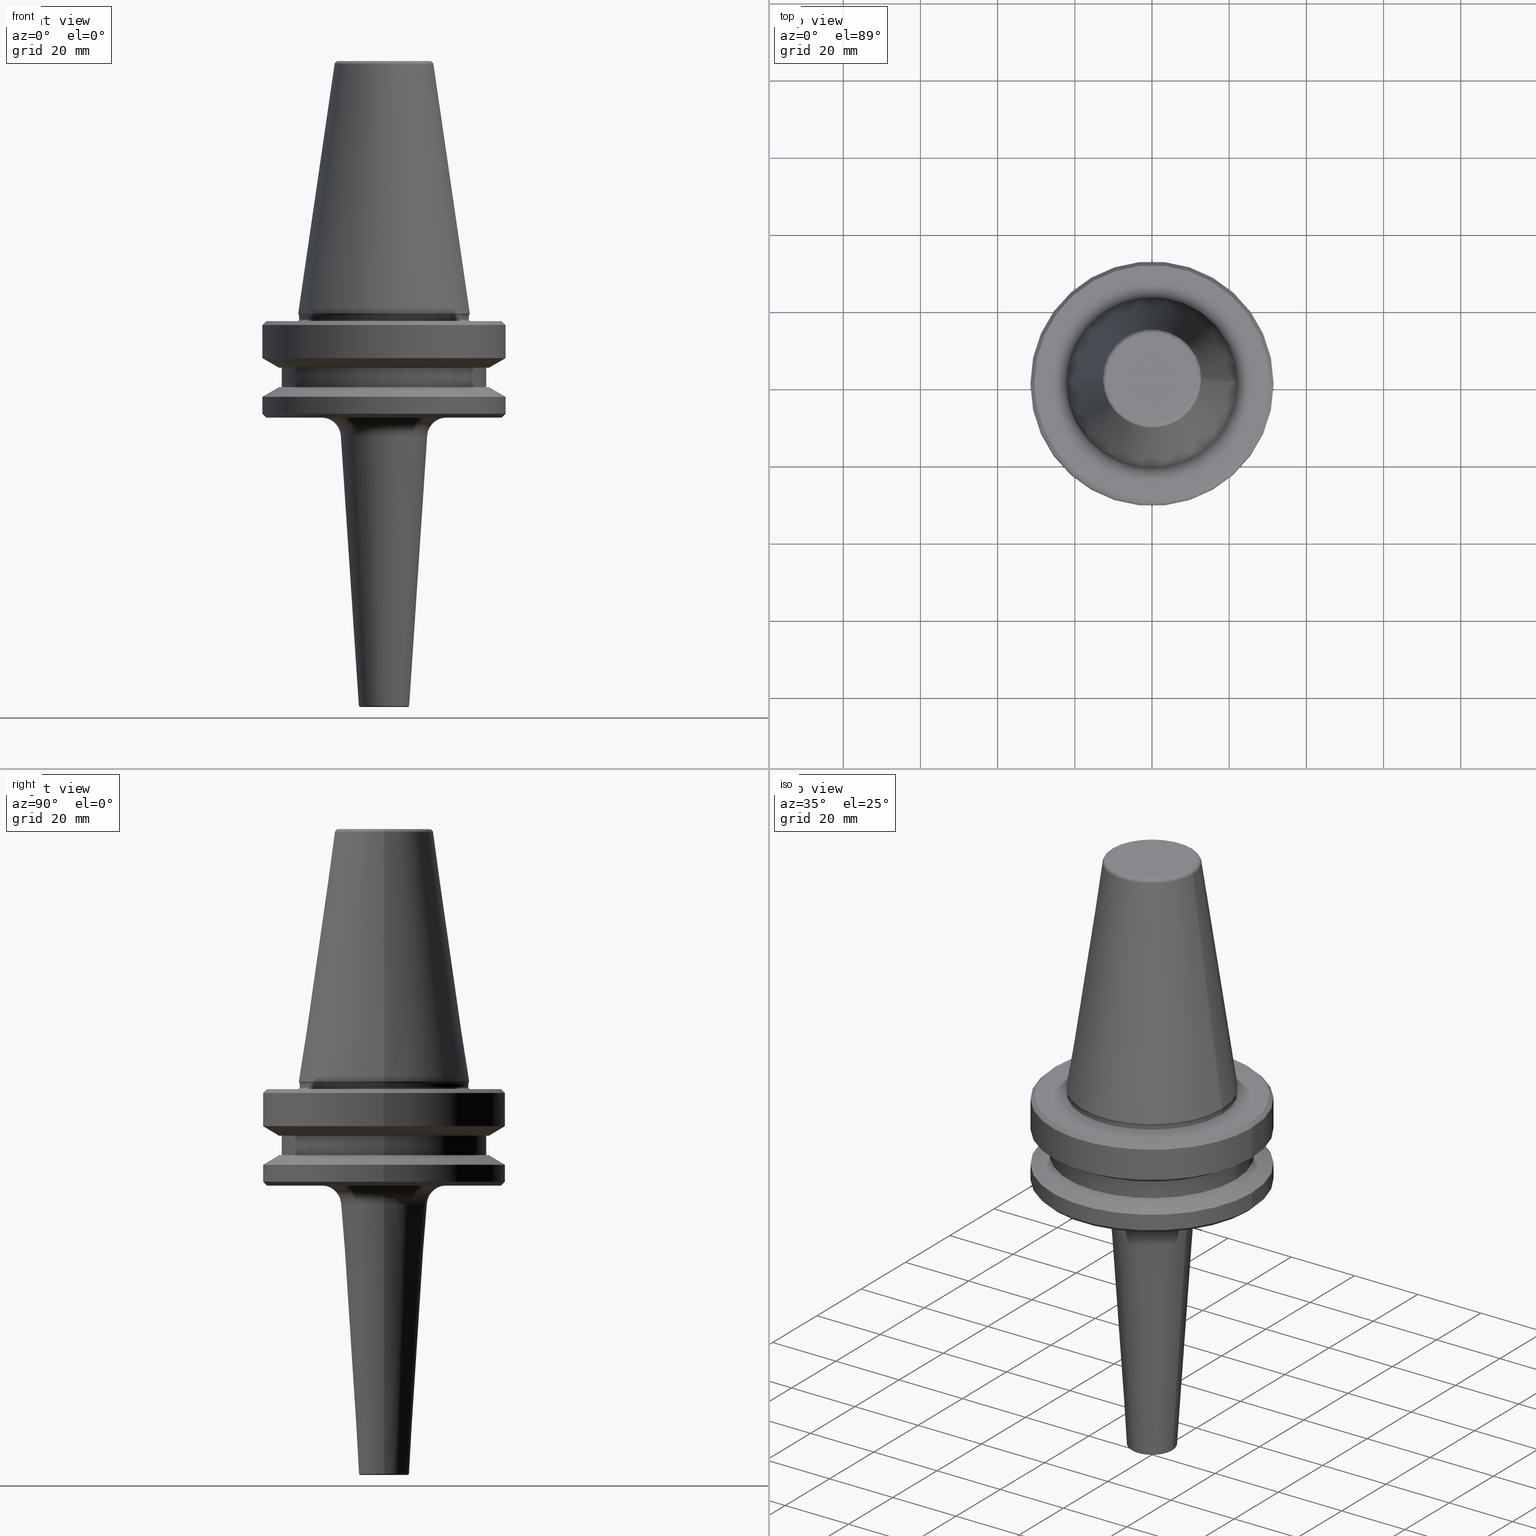
[diagram: canonical four-view strip — front | top / right | iso, engineering-drawing reading convention]
A machine part, canonical four-view strip (front | top / right | iso — engineering-drawing reading convention). The complete STEP part file that produces these views, byte-faithful:
ISO-10303-21;
HEADER;
FILE_DESCRIPTION (( 'STEP AP203' ),
    '1' );
FILE_NAME ('BT40 MCA08 075 AD+B-2.5G 25000 SL.STEP',
    '2019-05-24T09:48:04',
    ( '' ),
    ( '' ),
    'SwSTEP 2.0',
    'SolidWorks 2014',
    '' );
FILE_SCHEMA (( 'CONFIG_CONTROL_DESIGN' ));
ENDSEC;

DATA;
#1 = DIRECTION ( 'NONE',  ( 0.8660254037844332700, 1.060575238724900300E-016, -0.5000000000000093300 ) ) ;
#2 = CARTESIAN_POINT ( 'NONE',  ( -26.50000000000019200, 3.245314017740509400E-015, 6.357346922996331500 ) ) ;
#3 = CARTESIAN_POINT ( 'NONE',  ( 0.0000000000000000000, 0.0000000000000000000, -167.4000000000081100 ) ) ;
#4 = VECTOR ( 'NONE', #320, 1000.000000000000000 ) ;
#5 = DIRECTION ( 'NONE',  ( -0.0000000000000000000, -0.0000000000000000000, 1.000000000000000000 ) ) ;
#6 = DIRECTION ( 'NONE',  ( 1.000000000000000000, 0.0000000000000000000, 0.0000000000000000000 ) ) ;
#7 = AXIS2_PLACEMENT_3D ( 'NONE', #778, #225, #48 ) ;
#8 = EDGE_CURVE ( 'NONE', #463, #119, #521, .T. ) ;
#9 = DIRECTION ( 'NONE',  ( -0.0000000000000000000, -0.0000000000000000000, 1.000000000000000000 ) ) ;
#10 = APPROVAL_ROLE ( '' ) ;
#11 = DIRECTION ( 'NONE',  ( -0.0000000000000000000, -0.0000000000000000000, 1.000000000000000000 ) ) ;
#12 = VECTOR ( 'NONE', #944, 1000.000000000000000 ) ;
#13 = FACE_OUTER_BOUND ( 'NONE', #102, .T. ) ;
#14 = PRODUCT_DEFINITION ( 'UNKNOWN', '', #556, #829 ) ;
#15 = APPROVAL_STATUS ( 'not_yet_approved' ) ;
#16 = CIRCLE ( 'NONE', #346, 6.531116032982525100 ) ;
#17 = PERSON_AND_ORGANIZATION ( #1041, #462 ) ;
#18 = CARTESIAN_POINT ( 'NONE',  ( 6.032223454054515900, 0.0000000000000000000, -167.4000000000081100 ) ) ;
#19 = VERTEX_POINT ( 'NONE', #189 ) ;
#20 = ADVANCED_FACE ( 'NONE', ( #729 ), #702, .T. ) ;
#21 = CARTESIAN_POINT ( 'NONE',  ( -22.00000000000002100, 2.694222958124179600E-015, -66.08871321165987900 ) ) ;
#22 = VERTEX_POINT ( 'NONE', #896 ) ;
#23 = ORIENTED_EDGE ( 'NONE', *, *, #143, .F. ) ;
#24 = DIRECTION ( 'NONE',  ( 1.000000000000000000, 0.0000000000000000000, 0.0000000000000000000 ) ) ;
#25 = CARTESIAN_POINT ( 'NONE',  ( 0.0000000000000000000, 0.0000000000000000000, 6.357346922996331500 ) ) ;
#26 = ORIENTED_EDGE ( 'NONE', *, *, #1036, .T. ) ;
#27 = EDGE_CURVE ( 'NONE', #33, #133, #907, .T. ) ;
#28 = CARTESIAN_POINT ( 'NONE',  ( 12.81220206925736900, 2.145409868259749100E-015, -0.8556918111122247000 ) ) ;
#29 = CARTESIAN_POINT ( 'NONE',  ( 0.0000000000000000000, 0.0000000000000000000, -79.50000000000012800 ) ) ;
#30 = CARTESIAN_POINT ( 'NONE',  ( 27.16962701892256100, 3.592478546794633900E-015, -84.50000000000068200 ) ) ;
#31 = CARTESIAN_POINT ( 'NONE',  ( -11.18883967017459600, 1.675721268776682900E-015, -97.06740494738922100 ) ) ;
#32 = EDGE_CURVE ( 'NONE', #82, #697, #306, .T. ) ;
#33 = VERTEX_POINT ( 'NONE', #538 ) ;
#34 = CIRCLE ( 'NONE', #644, 11.18883967017459600 ) ;
#35 = APPROVAL ( #971, 'UNSPECIFIED' ) ;
#36 = CARTESIAN_POINT ( 'NONE',  ( -26.50000000000019200, 3.245314017740509400E-015, -84.50000000000068200 ) ) ;
#37 = CIRCLE ( 'NONE', #394, 26.50000000000019200 ) ;
#38 = FACE_OUTER_BOUND ( 'NONE', #494, .T. ) ;
#39 = CARTESIAN_POINT ( 'NONE',  ( -31.50000000000008500, 0.0000000000000000000, -87.00014200631733300 ) ) ;
#40 = VECTOR ( 'NONE', #1051, 1000.000000000000000 ) ;
#41 = CYLINDRICAL_SURFACE ( 'NONE', #618, 26.50000000000019200 ) ;
#42 = AXIS2_PLACEMENT_3D ( 'NONE', #53, #798, #691 ) ;
#43 = CARTESIAN_POINT ( 'NONE',  ( 31.50000000000008500, 0.0000000000000000000, -76.99985799368391800 ) ) ;
#44 = AXIS2_PLACEMENT_3D ( 'NONE', #758, #904, #831 ) ;
#45 = ORIENTED_EDGE ( 'NONE', *, *, #415, .T. ) ;
#46 = EDGE_CURVE ( 'NONE', #354, #934, #497, .T. ) ;
#47 = ORIENTED_EDGE ( 'NONE', *, *, #811, .T. ) ;
#48 = DIRECTION ( 'NONE',  ( 1.000000000000000000, 0.0000000000000000000, 0.0000000000000000000 ) ) ;
#49 = EDGE_LOOP ( 'NONE', ( #158, #131, #1031, #23 ) ) ;
#50 = EDGE_CURVE ( 'NONE', #197, #694, #283, .T. ) ;
#51 = CC_DESIGN_PERSON_AND_ORGANIZATION_ASSIGNMENT ( #748, #580, ( #410 ) ) ;
#52 = ORIENTED_EDGE ( 'NONE', *, *, #797, .F. ) ;
#53 = CARTESIAN_POINT ( 'NONE',  ( 0.0000000000000000000, 0.0000000000000000000, -65.95190515433003500 ) ) ;
#54 = DIRECTION ( 'NONE',  ( -0.0000000000000000000, -0.0000000000000000000, 1.000000000000000000 ) ) ;
#55 = LINE ( 'NONE', #789, #12 ) ;
#56 = FACE_OUTER_BOUND ( 'NONE', #296, .T. ) ;
#57 = AXIS2_PLACEMENT_3D ( 'NONE', #689, #613, #214 ) ;
#58 = ORIENTED_EDGE ( 'NONE', *, *, #319, .F. ) ;
#59 = AXIS2_PLACEMENT_3D ( 'NONE', #345, #9, #185 ) ;
#60 = DIRECTION ( 'NONE',  ( 1.224646799147353200E-016, 1.000000000000000000, 0.0000000000000000000 ) ) ;
#61 = SHAPE_DEFINITION_REPRESENTATION ( #961, #1018 ) ;
#62 = FACE_OUTER_BOUND ( 'NONE', #246, .T. ) ;
#63 = CC_DESIGN_APPROVAL ( #807, ( #410 ) ) ;
#64 = ADVANCED_FACE ( 'NONE', ( #881 ), #87, .F. ) ;
#65 = VERTEX_POINT ( 'NONE', #624 ) ;
#66 = FACE_OUTER_BOUND ( 'NONE', #224, .T. ) ;
#67 = APPROVAL_DATE_TIME ( #292, #807 ) ;
#68 = ORIENTED_EDGE ( 'NONE', *, *, #579, .T. ) ;
#69 = DIRECTION ( 'NONE',  ( -0.0000000000000000000, -0.0000000000000000000, 1.000000000000000000 ) ) ;
#70 = ORIENTED_EDGE ( 'NONE', *, *, #988, .F. ) ;
#71 = DIRECTION ( 'NONE',  ( 0.0000000000000000000, -0.0000000000000000000, 1.000000000000000000 ) ) ;
#72 = DIRECTION ( 'NONE',  ( -0.0000000000000000000, -0.0000000000000000000, 1.000000000000000000 ) ) ;
#73 = DIRECTION ( 'NONE',  ( 0.0000000000000000000, 0.0000000000000000000, -1.000000000000000000 ) ) ;
#74 = ADVANCED_FACE ( 'NONE', ( #684, #472 ), #675, .T. ) ;
#75 = EDGE_CURVE ( 'NONE', #285, #19, #37, .T. ) ;
#76 =( NAMED_UNIT ( * ) SI_UNIT ( $, .STERADIAN. ) SOLID_ANGLE_UNIT ( ) );
#77 = ORIENTED_EDGE ( 'NONE', *, *, #923, .F. ) ;
#78 = DIRECTION ( 'NONE',  ( -1.000000000000000000, 0.0000000000000000000, -0.0000000000000000000 ) ) ;
#79 = EDGE_LOOP ( 'NONE', ( #744, #249, #706, #827 ) ) ;
#80 = ADVANCED_FACE ( 'NONE', ( #857 ), #838, .T. ) ;
#81 = AXIS2_PLACEMENT_3D ( 'NONE', #757, #73, #366 ) ;
#82 = VERTEX_POINT ( 'NONE', #517 ) ;
#83 =( GEOMETRIC_REPRESENTATION_CONTEXT ( 3 ) GLOBAL_UNCERTAINTY_ASSIGNED_CONTEXT ( ( #704 ) ) GLOBAL_UNIT_ASSIGNED_CONTEXT ( ( #641, #566, #76 ) ) REPRESENTATION_CONTEXT ( 'NONE', 'WORKASPACE' ) );
#84 = DIRECTION ( 'NONE',  ( 1.000000000000000000, 0.0000000000000000000, 0.0000000000000000000 ) ) ;
#85 = VERTEX_POINT ( 'NONE', #474 ) ;
#86 = DIRECTION ( 'NONE',  ( 1.000000000000000000, 0.0000000000000000000, 0.0000000000000000000 ) ) ;
#87 = TOROIDAL_SURFACE ( 'NONE', #421, 22.49999999999996400, 0.4999999999999449300 ) ;
#88 = VECTOR ( 'NONE', #294, 1000.000000000000000 ) ;
#89 = DIRECTION ( 'NONE',  ( 1.000000000000000000, 0.0000000000000000000, 0.0000000000000000000 ) ) ;
#90 = CARTESIAN_POINT ( 'NONE',  ( 0.0000000000000000000, 0.0000000000000000000, -97.40000000000809200 ) ) ;
#91 = ORIENTED_EDGE ( 'NONE', *, *, #579, .F. ) ;
#92 = CONICAL_SURFACE ( 'NONE', #523, 12.81220206925736900, 0.1448138077623198300 ) ;
#93 = CYLINDRICAL_SURFACE ( 'NONE', #282, 31.50000000000008500 ) ;
#94 = DIRECTION ( 'NONE',  ( -0.1443081888881795900, 0.0000000000000000000, -0.9895327920891826600 ) ) ;
#95 = PERSON_AND_ORGANIZATION_ROLE ( 'creator' ) ;
#96 = CARTESIAN_POINT ( 'NONE',  ( 0.0000000000000000000, 0.0000000000000000000, 6.357346922996331500 ) ) ;
#97 = EDGE_LOOP ( 'NONE', ( #888, #815, #692, #746 ) ) ;
#98 = CIRCLE ( 'NONE', #717, 30.49999999999241900 ) ;
#99 = APPROVAL_PERSON_ORGANIZATION ( #722, #807, #101 ) ;
#100 = AXIS2_PLACEMENT_3D ( 'NONE', #879, #54, #478 ) ;
#101 = APPROVAL_ROLE ( '' ) ;
#102 = EDGE_LOOP ( 'NONE', ( #737, #398, #166, #70 ) ) ;
#103 = AXIS2_PLACEMENT_3D ( 'NONE', #90, #202, #599 ) ;
#104 = DIRECTION ( 'NONE',  ( 1.000000000000000000, 0.0000000000000000000, 0.0000000000000000000 ) ) ;
#105 = ORIENTED_EDGE ( 'NONE', *, *, #830, .F. ) ;
#106 = CARTESIAN_POINT ( 'NONE',  ( 26.50000000000019200, 0.0000000000000000000, -84.50000000000068200 ) ) ;
#107 = CARTESIAN_POINT ( 'NONE',  ( -31.50000000000008500, 3.857637417314172900E-015, -91.40000000000037500 ) ) ;
#108 = DIRECTION ( 'NONE',  ( 1.000000000000000000, 0.0000000000000000000, 0.0000000000000000000 ) ) ;
#109 = ORIENTED_EDGE ( 'NONE', *, *, #752, .F. ) ;
#110 = EDGE_CURVE ( 'NONE', #133, #948, #55, .T. ) ;
#111 = AXIS2_PLACEMENT_3D ( 'NONE', #637, #162, #1044 ) ;
#112 = CALENDAR_DATE ( 2019, 24, 5 ) ;
#113 = CARTESIAN_POINT ( 'NONE',  ( 0.0000000000000000000, 0.0000000000000000000, -4.440892098500626200E-013 ) ) ;
#114 = CARTESIAN_POINT ( 'NONE',  ( -6.531116032982522400, 7.998310344652004600E-016, -166.9332595052702600 ) ) ;
#115 = ORIENTED_EDGE ( 'NONE', *, *, #450, .T. ) ;
#116 = EDGE_LOOP ( 'NONE', ( #377, #921, #1037, #540 ) ) ;
#117 = CARTESIAN_POINT ( 'NONE',  ( 0.0000000000000000000, 0.0000000000000000000, -92.40000000000807700 ) ) ;
#118 = EDGE_CURVE ( 'NONE', #33, #119, #262, .T. ) ;
#119 = VERTEX_POINT ( 'NONE', #510 ) ;
#120 = ORIENTED_EDGE ( 'NONE', *, *, #118, .T. ) ;
#121 = TOROIDAL_SURFACE ( 'NONE', #607, 11.82266927716813000, 0.9999999999999696900 ) ;
#122 = CIRCLE ( 'NONE', #508, 22.02412295168554100 ) ;
#123 = DIRECTION ( 'NONE',  ( -0.0000000000000000000, -0.0000000000000000000, 1.000000000000000000 ) ) ;
#124 = CIRCLE ( 'NONE', #245, 31.50000000000008500 ) ;
#125 = EDGE_CURVE ( 'NONE', #821, #886, #237, .T. ) ;
#126 = AXIS2_PLACEMENT_3D ( 'NONE', #137, #591, #727 ) ;
#127 = ORIENTED_EDGE ( 'NONE', *, *, #335, .T. ) ;
#128 = CONICAL_SURFACE ( 'NONE', #215, 30.49999999999997200, 0.7853981633974482800 ) ;
#129 = CARTESIAN_POINT ( 'NONE',  ( -31.50000000000008500, 3.857637417314172900E-015, -68.40000000000046000 ) ) ;
#130 = APPROVAL ( #351, 'UNSPECIFIED' ) ;
#131 = ORIENTED_EDGE ( 'NONE', *, *, #46, .T. ) ;
#132 = DIRECTION ( 'NONE',  ( 0.0000000000000000000, 0.0000000000000000000, -1.000000000000000000 ) ) ;
#133 = VERTEX_POINT ( 'NONE', #266 ) ;
#134 = DIRECTION ( 'NONE',  ( 1.000000000000000000, 0.0000000000000000000, 0.0000000000000000000 ) ) ;
#135 = AXIS2_PLACEMENT_3D ( 'NONE', #385, #1016, #460 ) ;
#136 = ADVANCED_FACE ( 'NONE', ( #630 ), #816, .T. ) ;
#137 = CARTESIAN_POINT ( 'NONE',  ( 0.0000000000000000000, 0.0000000000000000000, -87.00014200631733300 ) ) ;
#138 = CARTESIAN_POINT ( 'NONE',  ( -22.02412295168553100, 2.697177167680943700E-015, -65.95190515433003500 ) ) ;
#139 = VERTEX_POINT ( 'NONE', #809 ) ;
#140 = EDGE_LOOP ( 'NONE', ( #127, #793 ) ) ;
#141 = PERSON_AND_ORGANIZATION ( #1041, #462 ) ;
#142 = CARTESIAN_POINT ( 'NONE',  ( 0.0000000000000000000, 0.0000000000000000000, -67.40000000000034700 ) ) ;
#143 = EDGE_CURVE ( 'NONE', #272, #945, #210, .T. ) ;
#144 = ORIENTED_EDGE ( 'NONE', *, *, #233, .F. ) ;
#145 = ORIENTED_EDGE ( 'NONE', *, *, #183, .F. ) ;
#146 = EDGE_CURVE ( 'NONE', #354, #272, #431, .T. ) ;
#147 = AXIS2_PLACEMENT_3D ( 'NONE', #213, #687, #770 ) ;
#148 = VECTOR ( 'NONE', #94, 1000.000000000000000 ) ;
#149 = ORIENTED_EDGE ( 'NONE', *, *, #975, .F. ) ;
#150 = TOROIDAL_SURFACE ( 'NONE', #57, 6.032223454054515900, 0.4999999999996985200 ) ;
#151 = AXIS2_PLACEMENT_3D ( 'NONE', #3, #132, #217 ) ;
#152 = ORIENTED_EDGE ( 'NONE', *, *, #1030, .F. ) ;
#153 = AXIS2_PLACEMENT_3D ( 'NONE', #221, #714, #900 ) ;
#154 = EDGE_LOOP ( 'NONE', ( #145, #572, #608, #938 ) ) ;
#155 = CIRCLE ( 'NONE', #1035, 31.50000000000008500 ) ;
#156 = EDGE_CURVE ( 'NONE', #694, #19, #1032, .T. ) ;
#157 = DIRECTION ( 'NONE',  ( 1.000000000000000000, 0.0000000000000000000, 0.0000000000000000000 ) ) ;
#158 = ORIENTED_EDGE ( 'NONE', *, *, #370, .T. ) ;
#159 = ORIENTED_EDGE ( 'NONE', *, *, #871, .F. ) ;
#160 = ORIENTED_EDGE ( 'NONE', *, *, #768, .T. ) ;
#161 = COORDINATED_UNIVERSAL_TIME_OFFSET ( 5, 30, .AHEAD. ) ;
#162 = DIRECTION ( 'NONE',  ( -0.0000000000000000000, -0.0000000000000000000, 1.000000000000000000 ) ) ;
#163 = ADVANCED_FACE ( 'NONE', ( #187 ), #589, .T. ) ;
#164 = AXIS2_PLACEMENT_3D ( 'NONE', #1009, #840, #922 ) ;
#165 = EDGE_CURVE ( 'NONE', #728, #65, #795, .T. ) ;
#166 = ORIENTED_EDGE ( 'NONE', *, *, #1049, .T. ) ;
#167 = AXIS2_PLACEMENT_3D ( 'NONE', #389, #611, #531 ) ;
#168 = DIRECTION ( 'NONE',  ( -0.0000000000000000000, -0.0000000000000000000, 1.000000000000000000 ) ) ;
#169 = CC_DESIGN_APPROVAL ( #35, ( #14 ) ) ;
#170 = DIRECTION ( 'NONE',  ( 1.224646799147353200E-016, 1.000000000000000000, 0.0000000000000000000 ) ) ;
#171 = CARTESIAN_POINT ( 'NONE',  ( 31.50000000000008500, 0.0000000000000000000, -68.40000000000046000 ) ) ;
#172 = CARTESIAN_POINT ( 'NONE',  ( 26.50000000000019200, 0.0000000000000000000, 6.357346922996331500 ) ) ;
#173 = EDGE_CURVE ( 'NONE', #597, #82, #609, .T. ) ;
#174 = DIRECTION ( 'NONE',  ( -0.0000000000000000000, -0.0000000000000000000, 1.000000000000000000 ) ) ;
#175 = DIRECTION ( 'NONE',  ( -0.7071067811865474600, 0.0000000000000000000, -0.7071067811865475700 ) ) ;
#176 = ADVANCED_FACE ( 'NONE', ( #1006 ), #568, .T. ) ;
#177 = VECTOR ( 'NONE', #823, 1000.000000000000000 ) ;
#178 = DIRECTION ( 'NONE',  ( 0.0000000000000000000, 0.0000000000000000000, -1.000000000000000000 ) ) ;
#179 = CARTESIAN_POINT ( 'NONE',  ( 0.0000000000000000000, 2.685979460424941200E-013, -92.40000000000806300 ) ) ;
#180 = ORIENTED_EDGE ( 'NONE', *, *, #813, .T. ) ;
#181 = FACE_OUTER_BOUND ( 'NONE', #49, .T. ) ;
#182 = AXIS2_PLACEMENT_3D ( 'NONE', #239, #678, #134 ) ;
#183 = EDGE_CURVE ( 'NONE', #597, #948, #760, .T. ) ;
#184 = EDGE_LOOP ( 'NONE', ( #976, #937 ) ) ;
#185 = DIRECTION ( 'NONE',  ( 1.000000000000000000, 0.0000000000000000000, 0.0000000000000000000 ) ) ;
#186 = EDGE_LOOP ( 'NONE', ( #1001, #785, #985, #1004 ) ) ;
#187 = FACE_OUTER_BOUND ( 'NONE', #516, .T. ) ;
#188 = CIRCLE ( 'NONE', #1034, 12.81220206925736900 ) ;
#189 = CARTESIAN_POINT ( 'NONE',  ( 26.50000000000019200, 0.0000000000000000000, -79.50000000000012800 ) ) ;
#190 = DIRECTION ( 'NONE',  ( -0.0000000000000000000, -0.0000000000000000000, 1.000000000000000000 ) ) ;
#191 = ORIENTED_EDGE ( 'NONE', *, *, #779, .F. ) ;
#192 = FACE_OUTER_BOUND ( 'NONE', #585, .T. ) ;
#193 = DIRECTION ( 'NONE',  ( 1.000000000000000000, 0.0000000000000000000, 0.0000000000000000000 ) ) ;
#194 = CARTESIAN_POINT ( 'NONE',  ( 30.49999999999997200, 3.735172737399423600E-015, -67.40000000000034700 ) ) ;
#195 = LOCAL_TIME ( 15, 18, 4.000000000000000000, #414 ) ;
#196 = DIRECTION ( 'NONE',  ( 0.0000000000000000000, -0.0000000000000000000, 1.000000000000000000 ) ) ;
#197 = VERTEX_POINT ( 'NONE', #36 ) ;
#198 = DIRECTION ( 'NONE',  ( -0.0000000000000000000, -0.0000000000000000000, 1.000000000000000000 ) ) ;
#199 = ORIENTED_EDGE ( 'NONE', *, *, #1036, .F. ) ;
#200 = CARTESIAN_POINT ( 'NONE',  ( 0.0000000000000000000, 0.0000000000000000000, 6.357346922996331500 ) ) ;
#201 = EDGE_CURVE ( 'NONE', #365, #490, #341, .T. ) ;
#202 = DIRECTION ( 'NONE',  ( -0.0000000000000000000, -0.0000000000000000000, 1.000000000000000000 ) ) ;
#203 = EDGE_CURVE ( 'NONE', #622, #635, #550, .T. ) ;
#204 = VECTOR ( 'NONE', #190, 1000.000000000000000 ) ;
#205 = AXIS2_PLACEMENT_3D ( 'NONE', #499, #252, #1055 ) ;
#206 = CIRCLE ( 'NONE', #42, 22.02412295168554100 ) ;
#207 = CARTESIAN_POINT ( 'NONE',  ( 0.0000000000000000000, 0.0000000000000000000, -66.90000000000040400 ) ) ;
#208 = AXIS2_PLACEMENT_3D ( 'NONE', #650, #733, #89 ) ;
#209 = CARTESIAN_POINT ( 'NONE',  ( 0.0000000000000000000, 0.0000000000000000000, -84.50000000000068200 ) ) ;
#210 = CIRCLE ( 'NONE', #718, 0.4999999999996951300 ) ;
#211 = FACE_OUTER_BOUND ( 'NONE', #755, .T. ) ;
#212 = AXIS2_PLACEMENT_3D ( 'NONE', #434, #578, #178 ) ;
#213 = CARTESIAN_POINT ( 'NONE',  ( 0.0000000000000000000, 0.0000000000000000000, -79.50000000000012800 ) ) ;
#214 = DIRECTION ( 'NONE',  ( 1.000000000000000000, 0.0000000000000000000, 0.0000000000000000000 ) ) ;
#215 = AXIS2_PLACEMENT_3D ( 'NONE', #534, #623, #492 ) ;
#216 = EDGE_LOOP ( 'NONE', ( #515, #180, #561, #916 ) ) ;
#217 = DIRECTION ( 'NONE',  ( -1.000000000000000000, 0.0000000000000000000, -0.0000000000000000000 ) ) ;
#218 = FACE_OUTER_BOUND ( 'NONE', #116, .T. ) ;
#219 = ORIENTED_EDGE ( 'NONE', *, *, #183, .T. ) ;
#220 = CALENDAR_DATE ( 2019, 24, 5 ) ;
#221 = CARTESIAN_POINT ( 'NONE',  ( 0.0000000000000000000, 0.0000000000000000000, -76.99985799368391800 ) ) ;
#222 = VERTEX_POINT ( 'NONE', #129 ) ;
#223 = CARTESIAN_POINT ( 'NONE',  ( 30.49999999999241900, 0.0000000000000000000, -92.40000000000803500 ) ) ;
#224 = EDGE_LOOP ( 'NONE', ( #279, #52 ) ) ;
#225 = DIRECTION ( 'NONE',  ( -0.0000000000000000000, -0.0000000000000000000, 1.000000000000000000 ) ) ;
#226 = ADVANCED_FACE ( 'NONE', ( #943 ), #914, .T. ) ;
#227 = VERTEX_POINT ( 'NONE', #349 ) ;
#228 = DIRECTION ( 'NONE',  ( 1.000000000000000000, 0.0000000000000000000, 0.0000000000000000000 ) ) ;
#229 = EDGE_CURVE ( 'NONE', #85, #271, #736, .T. ) ;
#230 = CARTESIAN_POINT ( 'NONE',  ( -22.49999999999996400, 2.755455298081540400E-015, -66.90000000000040400 ) ) ;
#231 = AXIS2_PLACEMENT_3D ( 'NONE', #724, #417, #825 ) ;
#232 = CARTESIAN_POINT ( 'NONE',  ( 0.0000000000000000000, 0.0000000000000000000, -0.8556918111122247000 ) ) ;
#233 = EDGE_CURVE ( 'NONE', #463, #697, #527, .T. ) ;
#234 = ORIENTED_EDGE ( 'NONE', *, *, #400, .T. ) ;
#235 = FACE_OUTER_BOUND ( 'NONE', #314, .T. ) ;
#236 = AXIS2_PLACEMENT_3D ( 'NONE', #422, #903, #819 ) ;
#237 = CIRCLE ( 'NONE', #532, 11.82266927716813000 ) ;
#238 = LINE ( 'NONE', #885, #631 ) ;
#239 = CARTESIAN_POINT ( 'NONE',  ( 0.0000000000000000000, 0.0000000000000000000, -166.9000000000083900 ) ) ;
#240 = CC_DESIGN_PERSON_AND_ORGANIZATION_ASSIGNMENT ( #954, #435, ( #556 ) ) ;
#241 = CONICAL_SURFACE ( 'NONE', #295, 31.50000000000008500, 1.047197551196597400 ) ;
#242 = PERSON_AND_ORGANIZATION ( #1041, #462 ) ;
#243 = ORIENTED_EDGE ( 'NONE', *, *, #370, .F. ) ;
#244 = DIRECTION ( 'NONE',  ( -0.8660254037844383700, 1.060575238724906500E-016, 0.5000000000000003300 ) ) ;
#245 = AXIS2_PLACEMENT_3D ( 'NONE', #329, #962, #598 ) ;
#246 = EDGE_LOOP ( 'NONE', ( #243, #302 ) ) ;
#247 = CARTESIAN_POINT ( 'NONE',  ( -16.17776545945764300, 1.981204868728141100E-015, -97.40000000000809200 ) ) ;
#248 = APPROVAL_ROLE ( '' ) ;
#249 = ORIENTED_EDGE ( 'NONE', *, *, #851, .T. ) ;
#250 = APPLICATION_PROTOCOL_DEFINITION ( 'international standard', 'config_control_design', 1994, #324 ) ;
#251 = CARTESIAN_POINT ( 'NONE',  ( 0.0000000000000000000, 0.0000000000000000000, -1.000000000000334000 ) ) ;
#252 = DIRECTION ( 'NONE',  ( 0.0000000000000000000, 0.0000000000000000000, 1.000000000000000000 ) ) ;
#253 = ORIENTED_EDGE ( 'NONE', *, *, #859, .F. ) ;
#254 = VECTOR ( 'NONE', #628, 1000.000000000000000 ) ;
#255 = PLANE ( 'NONE',  #151 ) ;
#256 = AXIS2_PLACEMENT_3D ( 'NONE', #251, #997, #957 ) ;
#257 = DIRECTION ( 'NONE',  ( -0.0000000000000000000, -0.0000000000000000000, 1.000000000000000000 ) ) ;
#258 = CARTESIAN_POINT ( 'NONE',  ( 0.0000000000000000000, 0.0000000000000000000, -1.000000000000334000 ) ) ;
#259 = DIRECTION ( 'NONE',  ( 1.000000000000000000, 0.0000000000000000000, 0.0000000000000000000 ) ) ;
#260 = CARTESIAN_POINT ( 'NONE',  ( 0.0000000000000000000, 0.0000000000000000000, -67.40000000000034700 ) ) ;
#261 = CARTESIAN_POINT ( 'NONE',  ( 0.0000000000000000000, 0.0000000000000000000, -91.40000000000037500 ) ) ;
#262 = LINE ( 'NONE', #643, #457 ) ;
#263 = LINE ( 'NONE', #977, #458 ) ;
#264 = CONICAL_SURFACE ( 'NONE', #208, 22.22499999999993700, 0.3490658503994643600 ) ;
#265 = CIRCLE ( 'NONE', #135, 6.032223454054515900 ) ;
#266 = CARTESIAN_POINT ( 'NONE',  ( -22.00000000000002100, 2.724839128102860200E-015, -66.90000000000040400 ) ) ;
#267 = APPLICATION_PROTOCOL_DEFINITION ( 'international standard', 'config_control_design', 1994, #337 ) ;
#268 = ORIENTED_EDGE ( 'NONE', *, *, #680, .F. ) ;
#269 = DIRECTION ( 'NONE',  ( -0.0000000000000000000, -0.0000000000000000000, 1.000000000000000000 ) ) ;
#270 = AXIS2_PLACEMENT_3D ( 'NONE', #764, #456, #601 ) ;
#271 = VERTEX_POINT ( 'NONE', #273 ) ;
#272 = VERTEX_POINT ( 'NONE', #18 ) ;
#273 = CARTESIAN_POINT ( 'NONE',  ( 31.50000000000008500, 0.0000000000000000000, -76.99985799368391800 ) ) ;
#274 = AXIS2_PLACEMENT_3D ( 'NONE', #113, #514, #78 ) ;
#275 = ORIENTED_EDGE ( 'NONE', *, *, #125, .F. ) ;
#276 = DIRECTION ( 'NONE',  ( 1.000000000000000000, 0.0000000000000000000, 0.0000000000000000000 ) ) ;
#277 = EDGE_CURVE ( 'NONE', #222, #480, #124, .T. ) ;
#278 = ADVANCED_FACE ( 'NONE', ( #970 ), #688, .T. ) ;
#279 = ORIENTED_EDGE ( 'NONE', *, *, #891, .F. ) ;
#280 = CARTESIAN_POINT ( 'NONE',  ( 0.0000000000000000000, 0.0000000000000000000, -67.40000000000034700 ) ) ;
#281 = DIRECTION ( 'NONE',  ( 1.000000000000000000, 0.0000000000000000000, 0.0000000000000000000 ) ) ;
#282 = AXIS2_PLACEMENT_3D ( 'NONE', #200, #486, #86 ) ;
#283 = CIRCLE ( 'NONE', #784, 26.50000000000019200 ) ;
#284 = CIRCLE ( 'NONE', #554, 31.50000000000008500 ) ;
#285 = VERTEX_POINT ( 'NONE', #653 ) ;
#286 = DIRECTION ( 'NONE',  ( 0.0000000000000000000, 0.0000000000000000000, -1.000000000000000000 ) ) ;
#287 = AXIS2_PLACEMENT_3D ( 'NONE', #487, #567, #1052 ) ;
#288 = TOROIDAL_SURFACE ( 'NONE', #776, 22.40000000000019800, 0.4000000000001546800 ) ;
#289 = FACE_OUTER_BOUND ( 'NONE', #1048, .T. ) ;
#290 = ORIENTED_EDGE ( 'NONE', *, *, #471, .F. ) ;
#291 = CIRCLE ( 'NONE', #433, 27.16962701892256100 ) ;
#292 = DATE_AND_TIME ( #505, #713 ) ;
#293 = DIRECTION ( 'NONE',  ( 0.0000000000000000000, 0.0000000000000000000, -1.000000000000000000 ) ) ;
#294 = DIRECTION ( 'NONE',  ( -0.0000000000000000000, -0.0000000000000000000, 1.000000000000000000 ) ) ;
#295 = AXIS2_PLACEMENT_3D ( 'NONE', #919, #1012, #513 ) ;
#296 = EDGE_LOOP ( 'NONE', ( #452, #592, #316, #649 ) ) ;
#297 = CARTESIAN_POINT ( 'NONE',  ( 0.0000000000000000000, 0.0000000000000000000, -68.40000000000046000 ) ) ;
#298 = ORIENTED_EDGE ( 'NONE', *, *, #871, .T. ) ;
#299 = DIRECTION ( 'NONE',  ( -0.0000000000000000000, -0.0000000000000000000, 1.000000000000000000 ) ) ;
#300 = ORIENTED_EDGE ( 'NONE', *, *, #768, .F. ) ;
#301 = DIRECTION ( 'NONE',  ( -0.0000000000000000000, -0.0000000000000000000, 1.000000000000000000 ) ) ;
#302 = ORIENTED_EDGE ( 'NONE', *, *, #146, .F. ) ;
#303 = ORIENTED_EDGE ( 'NONE', *, *, #75, .F. ) ;
#304 = DIRECTION ( 'NONE',  ( 1.000000000000000000, 0.0000000000000000000, 0.0000000000000000000 ) ) ;
#305 = ORIENTED_EDGE ( 'NONE', *, *, #436, .F. ) ;
#306 = CIRCLE ( 'NONE', #1010, 22.22499999999993700 ) ;
#307 = CIRCLE ( 'NONE', #788, 27.16962701892256100 ) ;
#308 = EDGE_LOOP ( 'NONE', ( #520, #587, #45, #529 ) ) ;
#309 = DIRECTION ( 'NONE',  ( 1.000000000000000000, 0.0000000000000000000, 0.0000000000000000000 ) ) ;
#310 = FACE_BOUND ( 'NONE', #906, .T. ) ;
#311 = VECTOR ( 'NONE', #986, 1000.000000000000000 ) ;
#312 = AXIS2_PLACEMENT_3D ( 'NONE', #495, #875, #423 ) ;
#313 = AXIS2_PLACEMENT_3D ( 'NONE', #833, #645, #228 ) ;
#314 = EDGE_LOOP ( 'NONE', ( #552, #762 ) ) ;
#315 = CYLINDRICAL_SURFACE ( 'NONE', #167, 31.50000000000008500 ) ;
#316 = ORIENTED_EDGE ( 'NONE', *, *, #935, .T. ) ;
#317 = DIRECTION ( 'NONE',  ( -0.0000000000000000000, -0.0000000000000000000, 1.000000000000000000 ) ) ;
#318 = EDGE_LOOP ( 'NONE', ( #677, #790, #582, #874 ) ) ;
#319 = EDGE_CURVE ( 'NONE', #635, #886, #887, .T. ) ;
#320 = DIRECTION ( 'NONE',  ( -0.06651901052377395800, 8.146229332038887700E-018, 0.9977851578566089300 ) ) ;
#321 = AXIS2_PLACEMENT_3D ( 'NONE', #574, #617, #693 ) ;
#322 = CARTESIAN_POINT ( 'NONE',  ( 0.0000000000000000000, 0.0000000000000000000, -79.50000000000012800 ) ) ;
#323 = LOCAL_TIME ( 15, 18, 4.000000000000000000, #537 ) ;
#324 = APPLICATION_CONTEXT ( 'configuration controlled 3d designs of mechanical parts and assemblies' ) ;
#325 = DIRECTION ( 'NONE',  ( 1.000000000000000000, 0.0000000000000000000, 0.0000000000000000000 ) ) ;
#326 = ORIENTED_EDGE ( 'NONE', *, *, #509, .T. ) ;
#327 = PRODUCT ( 'BT40 MCA08 075 AD+B-2.5G 25000 SL', 'BT40 MCA08 075 AD+B-2.5G 25000 SL', '', ( #872 ) ) ;
#328 = ORIENTED_EDGE ( 'NONE', *, *, #851, .F. ) ;
#329 = CARTESIAN_POINT ( 'NONE',  ( 0.0000000000000000000, 0.0000000000000000000, -68.40000000000046000 ) ) ;
#330 = DIRECTION ( 'NONE',  ( 1.000000000000000000, 0.0000000000000000000, 0.0000000000000000000 ) ) ;
#331 = ORIENTED_EDGE ( 'NONE', *, *, #680, .T. ) ;
#332 = ORIENTED_EDGE ( 'NONE', *, *, #846, .T. ) ;
#333 = EDGE_LOOP ( 'NONE', ( #290, #343 ) ) ;
#334 = CIRCLE ( 'NONE', #481, 0.4999999999999449300 ) ;
#335 = EDGE_CURVE ( 'NONE', #19, #285, #502, .T. ) ;
#336 = CARTESIAN_POINT ( 'NONE',  ( 0.0000000000000000000, 0.0000000000000000000, -0.8556918111122247000 ) ) ;
#337 = APPLICATION_CONTEXT ( 'configuration controlled 3d designs of mechanical parts and assemblies' ) ;
#338 = DIRECTION ( 'NONE',  ( 1.000000000000000000, 0.0000000000000000000, 0.0000000000000000000 ) ) ;
#339 = ADVANCED_FACE ( 'NONE', ( #62 ), #255, .T. ) ;
#340 = FACE_OUTER_BOUND ( 'NONE', #1043, .T. ) ;
#341 = CIRCLE ( 'NONE', #321, 30.49999999999997200 ) ;
#342 = CARTESIAN_POINT ( 'NONE',  ( 0.0000000000000000000, 0.0000000000000000000, -66.90000000000040400 ) ) ;
#343 = ORIENTED_EDGE ( 'NONE', *, *, #995, .F. ) ;
#344 = FACE_OUTER_BOUND ( 'NONE', #772, .T. ) ;
#345 = CARTESIAN_POINT ( 'NONE',  ( 0.0000000000000000000, 0.0000000000000000000, -97.06740494738922100 ) ) ;
#346 = AXIS2_PLACEMENT_3D ( 'NONE', #647, #1026, #489 ) ;
#347 = CARTESIAN_POINT ( 'NONE',  ( 0.0000000000000000000, 0.0000000000000000000, -65.95190515433003500 ) ) ;
#348 = ORIENTED_EDGE ( 'NONE', *, *, #935, .F. ) ;
#349 = CARTESIAN_POINT ( 'NONE',  ( 31.50000000000008500, 0.0000000000000000000, -91.40000000000037500 ) ) ;
#350 = EDGE_LOOP ( 'NONE', ( #105, #899, #852, #275 ) ) ;
#351 = APPROVAL_STATUS ( 'not_yet_approved' ) ;
#352 = ADVANCED_FACE ( 'NONE', ( #289 ), #363, .F. ) ;
#353 = DIRECTION ( 'NONE',  ( -0.0000000000000000000, -0.0000000000000000000, 1.000000000000000000 ) ) ;
#354 = VERTEX_POINT ( 'NONE', #448 ) ;
#355 = ORIENTED_EDGE ( 'NONE', *, *, #657, .T. ) ;
#356 = ORIENTED_EDGE ( 'NONE', *, *, #8, .F. ) ;
#357 = DIRECTION ( 'NONE',  ( 1.000000000000000000, 0.0000000000000000000, 0.0000000000000000000 ) ) ;
#358 = APPROVAL_DATE_TIME ( #564, #130 ) ;
#359 = ORIENTED_EDGE ( 'NONE', *, *, #436, .T. ) ;
#360 = ORIENTED_EDGE ( 'NONE', *, *, #739, .F. ) ;
#361 = EDGE_LOOP ( 'NONE', ( #864, #386, #191, #58 ) ) ;
#362 = AXIS2_PLACEMENT_3D ( 'NONE', #342, #257, #742 ) ;
#363 = PLANE ( 'NONE',  #274 ) ;
#364 = AXIS2_PLACEMENT_3D ( 'NONE', #780, #399, #465 ) ;
#365 = VERTEX_POINT ( 'NONE', #586 ) ;
#366 = DIRECTION ( 'NONE',  ( -1.000000000000000000, 0.0000000000000000000, -0.0000000000000000000 ) ) ;
#367 = EDGE_LOOP ( 'NONE', ( #535, #115, #868, #485 ) ) ;
#368 = CARTESIAN_POINT ( 'NONE',  ( -12.81220206925736900, 0.0000000000000000000, -0.8556918111122247000 ) ) ;
#369 = DIRECTION ( 'NONE',  ( -0.0000000000000000000, -0.0000000000000000000, 1.000000000000000000 ) ) ;
#370 = EDGE_CURVE ( 'NONE', #272, #354, #265, .T. ) ;
#371 = AXIS2_PLACEMENT_3D ( 'NONE', #848, #749, #330 ) ;
#372 = FACE_OUTER_BOUND ( 'NONE', #782, .T. ) ;
#373 = DIRECTION ( 'NONE',  ( 1.000000000000000000, 0.0000000000000000000, 0.0000000000000000000 ) ) ;
#374 = AXIS2_PLACEMENT_3D ( 'NONE', #25, #596, #193 ) ;
#375 = CARTESIAN_POINT ( 'NONE',  ( 0.0000000000000000000, 0.0000000000000000000, -97.06740494738922100 ) ) ;
#376 = ADVANCED_FACE ( 'NONE', ( #477 ), #241, .T. ) ;
#377 = ORIENTED_EDGE ( 'NONE', *, *, #859, .T. ) ;
#378 = VECTOR ( 'NONE', #767, 1000.000000000000000 ) ;
#379 = CARTESIAN_POINT ( 'NONE',  ( 11.18883967017459600, 0.0000000000000000000, -97.06740494738922100 ) ) ;
#380 = AXIS2_PLACEMENT_3D ( 'NONE', #467, #369, #756 ) ;
#381 = DIRECTION ( 'NONE',  ( -0.0000000000000000000, -0.0000000000000000000, 1.000000000000000000 ) ) ;
#382 = AXIS2_PLACEMENT_3D ( 'NONE', #455, #804, #569 ) ;
#383 = ORIENTED_EDGE ( 'NONE', *, *, #836, .F. ) ;
#384 = ADVANCED_FACE ( 'NONE', ( #663 ), #93, .T. ) ;
#385 = CARTESIAN_POINT ( 'NONE',  ( 0.0000000000000000000, 0.0000000000000000000, -167.4000000000081100 ) ) ;
#386 = ORIENTED_EDGE ( 'NONE', *, *, #830, .T. ) ;
#387 = VECTOR ( 'NONE', #999, 1000.000000000000000 ) ;
#388 = LINE ( 'NONE', #947, #254 ) ;
#389 = CARTESIAN_POINT ( 'NONE',  ( 0.0000000000000000000, 0.0000000000000000000, 6.357346922996331500 ) ) ;
#390 = AXIS2_PLACEMENT_3D ( 'NONE', #558, #1039, #949 ) ;
#391 = CARTESIAN_POINT ( 'NONE',  ( -27.16962701892322600, 3.592478546794674900E-015, -79.50000000000012800 ) ) ;
#392 = ORIENTED_EDGE ( 'NONE', *, *, #836, .T. ) ;
#393 = EDGE_LOOP ( 'NONE', ( #503, #533, #418, #303 ) ) ;
#394 = AXIS2_PLACEMENT_3D ( 'NONE', #1028, #404, #24 ) ;
#395 = APPROVAL_PERSON_ORGANIZATION ( #595, #130, #248 ) ;
#396 = CARTESIAN_POINT ( 'NONE',  ( 6.032223454054515900, 0.0000000000000000000, -166.9000000000083900 ) ) ;
#397 = DIRECTION ( 'NONE',  ( 1.000000000000000000, 0.0000000000000000000, 0.0000000000000000000 ) ) ;
#398 = ORIENTED_EDGE ( 'NONE', *, *, #672, .T. ) ;
#399 = DIRECTION ( 'NONE',  ( 1.224646799147353200E-016, 1.000000000000000000, 0.0000000000000000000 ) ) ;
#400 = EDGE_CURVE ( 'NONE', #945, #799, #860, .T. ) ;
#401 = LINE ( 'NONE', #440, #204 ) ;
#402 = CARTESIAN_POINT ( 'NONE',  ( 16.17776545945764300, 0.0000000000000000000, -92.40000000000809200 ) ) ;
#403 = CIRCLE ( 'NONE', #100, 31.50000000000008500 ) ;
#404 = DIRECTION ( 'NONE',  ( -0.0000000000000000000, -0.0000000000000000000, 1.000000000000000000 ) ) ;
#405 = ORIENTED_EDGE ( 'NONE', *, *, #479, .F. ) ;
#406 = CARTESIAN_POINT ( 'NONE',  ( -11.82266927716813000, 1.447859408766170200E-015, -1.000000000000334000 ) ) ;
#407 = ORIENTED_EDGE ( 'NONE', *, *, #761, .F. ) ;
#408 = VECTOR ( 'NONE', #967, 1000.000000000000000 ) ;
#409 = CONICAL_SURFACE ( 'NONE', #920, 31.50000000000008500, 1.047197551196597400 ) ;
#410 = SECURITY_CLASSIFICATION ( '', '', #665 ) ;
#411 = CARTESIAN_POINT ( 'NONE',  ( -11.18883967017459600, 1.370237668825224800E-015, -97.06740494738922100 ) ) ;
#412 = ORIENTED_EDGE ( 'NONE', *, *, #982, .T. ) ;
#413 = CYLINDRICAL_SURFACE ( 'NONE', #662, 22.00000000000002100 ) ;
#414 = COORDINATED_UNIVERSAL_TIME_OFFSET ( 5, 30, .AHEAD. ) ;
#415 = EDGE_CURVE ( 'NONE', #482, #271, #708, .T. ) ;
#416 = CARTESIAN_POINT ( 'NONE',  ( -11.82266927716813000, 1.508450817090336800E-015, -4.440892098500626200E-013 ) ) ;
#417 = DIRECTION ( 'NONE',  ( -0.0000000000000000000, -0.0000000000000000000, 1.000000000000000000 ) ) ;
#418 = ORIENTED_EDGE ( 'NONE', *, *, #156, .T. ) ;
#419 = CARTESIAN_POINT ( 'NONE',  ( 0.0000000000000000000, 0.0000000000000000000, -66.08871321165987900 ) ) ;
#420 = CARTESIAN_POINT ( 'NONE',  ( 27.16962701892322600, 0.0000000000000000000, -79.50000000000012800 ) ) ;
#421 = AXIS2_PLACEMENT_3D ( 'NONE', #783, #123, #828 ) ;
#422 = CARTESIAN_POINT ( 'NONE',  ( 0.0000000000000000000, 0.0000000000000000000, -87.00014200631733300 ) ) ;
#423 = DIRECTION ( 'NONE',  ( 1.000000000000000000, 0.0000000000000000000, 0.0000000000000000000 ) ) ;
#424 = CARTESIAN_POINT ( 'NONE',  ( 22.02412295168553100, 0.0000000000000000000, -65.95190515433003500 ) ) ;
#425 = DIRECTION ( 'NONE',  ( 1.000000000000000000, 0.0000000000000000000, 0.0000000000000000000 ) ) ;
#426 = CARTESIAN_POINT ( 'NONE',  ( 0.0000000000000000000, 0.0000000000000000000, -91.40000000000037500 ) ) ;
#427 = VECTOR ( 'NONE', #244, 1000.000000000000100 ) ;
#428 = CC_DESIGN_SECURITY_CLASSIFICATION ( #410, ( #556 ) ) ;
#429 = CARTESIAN_POINT ( 'NONE',  ( 0.0000000000000000000, 0.0000000000000000000, -97.40000000000809200 ) ) ;
#430 = DIRECTION ( 'NONE',  ( -0.0000000000000000000, -0.0000000000000000000, 1.000000000000000000 ) ) ;
#431 = CIRCLE ( 'NONE', #475, 6.032223454054515900 ) ;
#432 = LINE ( 'NONE', #470, #1007 ) ;
#433 = AXIS2_PLACEMENT_3D ( 'NONE', #209, #910, #929 ) ;
#434 = CARTESIAN_POINT ( 'NONE',  ( 11.82266927716813000, 0.0000000000000000000, -1.000000000000334000 ) ) ;
#435 = PERSON_AND_ORGANIZATION_ROLE ( 'design_supplier' ) ;
#436 = EDGE_CURVE ( 'NONE', #934, #945, #16, .T. ) ;
#437 = TOROIDAL_SURFACE ( 'NONE', #803, 22.40000000000019800, 0.4000000000001546800 ) ;
#438 = DIRECTION ( 'NONE',  ( 1.000000000000000000, 0.0000000000000000000, 0.0000000000000000000 ) ) ;
#439 = LOCAL_TIME ( 15, 18, 4.000000000000000000, #634 ) ;
#440 = CARTESIAN_POINT ( 'NONE',  ( -31.50000000000008500, 3.857637417314172900E-015, 6.357346922996331500 ) ) ;
#441 = EDGE_LOOP ( 'NONE', ( #980, #769, #911, #893 ) ) ;
#442 = DIRECTION ( 'NONE',  ( -0.0000000000000000000, -0.0000000000000000000, 1.000000000000000000 ) ) ;
#443 = ORIENTED_EDGE ( 'NONE', *, *, #995, .T. ) ;
#444 = ADVANCED_FACE ( 'NONE', ( #633 ), #437, .F. ) ;
#445 = DIRECTION ( 'NONE',  ( 1.000000000000000000, 0.0000000000000000000, 0.0000000000000000000 ) ) ;
#446 = AXIS2_PLACEMENT_3D ( 'NONE', #695, #771, #878 ) ;
#447 = CARTESIAN_POINT ( 'NONE',  ( 0.0000000000000000000, 0.0000000000000000000, -92.40000000000803500 ) ) ;
#448 = CARTESIAN_POINT ( 'NONE',  ( -6.032223454054515900, 7.692826744700727900E-016, -167.4000000000081100 ) ) ;
#449 = DIRECTION ( 'NONE',  ( -0.0000000000000000000, -0.0000000000000000000, 1.000000000000000000 ) ) ;
#450 = EDGE_CURVE ( 'NONE', #197, #285, #1038, .T. ) ;
#451 = DIRECTION ( 'NONE',  ( 1.000000000000000000, 0.0000000000000000000, 0.0000000000000000000 ) ) ;
#452 = ORIENTED_EDGE ( 'NONE', *, *, #996, .F. ) ;
#453 = CIRCLE ( 'NONE', #390, 11.82266927716813000 ) ;
#454 = ADVANCED_FACE ( 'NONE', ( #218 ), #659, .T. ) ;
#455 = CARTESIAN_POINT ( 'NONE',  ( 0.0000000000000000000, 0.0000000000000000000, -92.40000000000807700 ) ) ;
#456 = DIRECTION ( 'NONE',  ( 0.0000000000000000000, -1.000000000000000000, 0.0000000000000000000 ) ) ;
#457 = VECTOR ( 'NONE', #168, 1000.000000000000000 ) ;
#458 = VECTOR ( 'NONE', #175, 1000.000000000000000 ) ;
#459 = AXIS2_PLACEMENT_3D ( 'NONE', #280, #442, #651 ) ;
#460 = DIRECTION ( 'NONE',  ( 1.000000000000000000, 0.0000000000000000000, 0.0000000000000000000 ) ) ;
#461 = VECTOR ( 'NONE', #731, 1000.000000000000000 ) ;
#462 = ORGANIZATION ( 'UNSPECIFIED', 'UNSPECIFIED', '' ) ;
#463 = VERTEX_POINT ( 'NONE', #424 ) ;
#464 = DIRECTION ( 'NONE',  ( 1.000000000000000000, 0.0000000000000000000, 0.0000000000000000000 ) ) ;
#465 = DIRECTION ( 'NONE',  ( -1.000000000000000000, 1.224646799147353200E-016, 0.0000000000000000000 ) ) ;
#466 = ORIENTED_EDGE ( 'NONE', *, *, #813, .F. ) ;
#467 = CARTESIAN_POINT ( 'NONE',  ( 0.0000000000000000000, 0.0000000000000000000, -84.50000000000068200 ) ) ;
#468 = ADVANCED_FACE ( 'NONE', ( #192 ), #413, .T. ) ;
#469 = ORIENTED_EDGE ( 'NONE', *, *, #479, .T. ) ;
#470 = CARTESIAN_POINT ( 'NONE',  ( 31.50000000000008500, 0.0000000000000000000, -91.40000000000037500 ) ) ;
#471 = EDGE_CURVE ( 'NONE', #519, #547, #1013, .T. ) ;
#472 = FACE_BOUND ( 'NONE', #184, .T. ) ;
#473 = FACE_OUTER_BOUND ( 'NONE', #350, .T. ) ;
#474 = CARTESIAN_POINT ( 'NONE',  ( -31.50000000000008500, 3.857637417314172900E-015, -76.99985799368391800 ) ) ;
#475 = AXIS2_PLACEMENT_3D ( 'NONE', #493, #909, #373 ) ;
#476 = CIRCLE ( 'NONE', #312, 22.22499999999993700 ) ;
#477 = FACE_OUTER_BOUND ( 'NONE', #308, .T. ) ;
#478 = DIRECTION ( 'NONE',  ( 1.000000000000000000, 0.0000000000000000000, 0.0000000000000000000 ) ) ;
#479 = EDGE_CURVE ( 'NONE', #65, #728, #800, .T. ) ;
#480 = VERTEX_POINT ( 'NONE', #171 ) ;
#481 = AXIS2_PLACEMENT_3D ( 'NONE', #230, #696, #640 ) ;
#482 = VERTEX_POINT ( 'NONE', #420 ) ;
#483 = CARTESIAN_POINT ( 'NONE',  ( 31.50000000000008500, 3.857637417314172900E-015, -87.00014200631733300 ) ) ;
#484 = CARTESIAN_POINT ( 'NONE',  ( 11.18883967017459600, 0.0000000000000000000, -97.06740494738922100 ) ) ;
#485 = ORIENTED_EDGE ( 'NONE', *, *, #156, .F. ) ;
#486 = DIRECTION ( 'NONE',  ( -0.0000000000000000000, -0.0000000000000000000, 1.000000000000000000 ) ) ;
#487 = CARTESIAN_POINT ( 'NONE',  ( 0.0000000000000000000, 0.0000000000000000000, -66.08871321165987900 ) ) ;
#488 = AXIS2_PLACEMENT_3D ( 'NONE', #29, #196, #397 ) ;
#489 = DIRECTION ( 'NONE',  ( 1.000000000000000000, 0.0000000000000000000, 0.0000000000000000000 ) ) ;
#490 = VERTEX_POINT ( 'NONE', #806 ) ;
#491 = CC_DESIGN_PERSON_AND_ORGANIZATION_ASSIGNMENT ( #242, #725, ( #327 ) ) ;
#492 = DIRECTION ( 'NONE',  ( -1.000000000000000000, 0.0000000000000000000, 0.0000000000000000000 ) ) ;
#493 = CARTESIAN_POINT ( 'NONE',  ( 0.0000000000000000000, 0.0000000000000000000, -167.4000000000081100 ) ) ;
#494 = EDGE_LOOP ( 'NONE', ( #560, #26, #120, #300 ) ) ;
#495 = CARTESIAN_POINT ( 'NONE',  ( 0.0000000000000000000, 0.0000000000000000000, -65.40000000000057400 ) ) ;
#496 = DIRECTION ( 'NONE',  ( -0.0000000000000000000, -0.0000000000000000000, 1.000000000000000000 ) ) ;
#497 = CIRCLE ( 'NONE', #364, 0.4999999999996985700 ) ;
#498 = CONICAL_SURFACE ( 'NONE', #446, 22.22499999999993700, 0.3490658503994643600 ) ;
#499 = CARTESIAN_POINT ( 'NONE',  ( 0.0000000000000000000, 0.0000000000000000000, 0.0000000000000000000 ) ) ;
#500 = DATE_TIME_ROLE ( 'creation_date' ) ;
#501 = LINE ( 'NONE', #805, #40 ) ;
#502 = CIRCLE ( 'NONE', #147, 26.50000000000019200 ) ;
#503 = ORIENTED_EDGE ( 'NONE', *, *, #450, .F. ) ;
#504 = CIRCLE ( 'NONE', #570, 5.000000000000004400 ) ;
#505 = CALENDAR_DATE ( 2019, 24, 5 ) ;
#506 = DIRECTION ( 'NONE',  ( 0.0000000000000000000, 0.0000000000000000000, -1.000000000000000000 ) ) ;
#507 = VERTEX_POINT ( 'NONE', #30 ) ;
#508 = AXIS2_PLACEMENT_3D ( 'NONE', #347, #5, #425 ) ;
#509 = EDGE_CURVE ( 'NONE', #133, #547, #334, .T. ) ;
#510 = CARTESIAN_POINT ( 'NONE',  ( 22.00000000000002100, 0.0000000000000000000, -66.08871321165987900 ) ) ;
#511 = CARTESIAN_POINT ( 'NONE',  ( 0.0000000000000000000, 0.0000000000000000000, 6.357346922996331500 ) ) ;
#512 = CC_DESIGN_APPROVAL ( #130, ( #556 ) ) ;
#513 = DIRECTION ( 'NONE',  ( 1.000000000000000000, 0.0000000000000000000, 0.0000000000000000000 ) ) ;
#514 = DIRECTION ( 'NONE',  ( 0.0000000000000000000, 0.0000000000000000000, -1.000000000000000000 ) ) ;
#515 = ORIENTED_EDGE ( 'NONE', *, *, #664, .T. ) ;
#516 = EDGE_LOOP ( 'NONE', ( #355, #774, #360, #91 ) ) ;
#517 = CARTESIAN_POINT ( 'NONE',  ( -22.22499999999993700, 2.721777511104985000E-015, -65.40000000000057400 ) ) ;
#518 = ORIENTED_EDGE ( 'NONE', *, *, #524, .F. ) ;
#519 = VERTEX_POINT ( 'NONE', #873 ) ;
#520 = ORIENTED_EDGE ( 'NONE', *, *, #811, .F. ) ;
#521 = CIRCLE ( 'NONE', #1021, 0.4000000000001502400 ) ;
#522 = FACE_OUTER_BOUND ( 'NONE', #844, .T. ) ;
#523 = AXIS2_PLACEMENT_3D ( 'NONE', #812, #559, #883 ) ;
#524 = EDGE_CURVE ( 'NONE', #271, #85, #730, .T. ) ;
#525 = CARTESIAN_POINT ( 'NONE',  ( 0.0000000000000000000, 0.0000000000000000000, 6.357346922996331500 ) ) ;
#526 = CIRCLE ( 'NONE', #362, 22.00000000000002100 ) ;
#527 = LINE ( 'NONE', #658, #311 ) ;
#528 = DIRECTION ( 'NONE',  ( 0.0000000000000000000, -1.000000000000000000, 0.0000000000000000000 ) ) ;
#529 = ORIENTED_EDGE ( 'NONE', *, *, #229, .F. ) ;
#530 = CIRCLE ( 'NONE', #380, 26.50000000000019200 ) ;
#531 = DIRECTION ( 'NONE',  ( 1.000000000000000000, 0.0000000000000000000, 0.0000000000000000000 ) ) ;
#532 = AXIS2_PLACEMENT_3D ( 'NONE', #542, #981, #719 ) ;
#533 = ORIENTED_EDGE ( 'NONE', *, *, #50, .T. ) ;
#534 = CARTESIAN_POINT ( 'NONE',  ( 0.0000000000000000000, 0.0000000000000000000, -67.40000000000034700 ) ) ;
#535 = ORIENTED_EDGE ( 'NONE', *, *, #897, .T. ) ;
#536 = DIRECTION ( 'NONE',  ( 1.000000000000000000, 0.0000000000000000000, 0.0000000000000000000 ) ) ;
#537 = COORDINATED_UNIVERSAL_TIME_OFFSET ( 5, 30, .AHEAD. ) ;
#538 = CARTESIAN_POINT ( 'NONE',  ( 22.00000000000002100, 0.0000000000000000000, -66.90000000000040400 ) ) ;
#539 = ADVANCED_FACE ( 'NONE', ( #522 ), #498, .T. ) ;
#540 = ORIENTED_EDGE ( 'NONE', *, *, #683, .F. ) ;
#541 = ORIENTED_EDGE ( 'NONE', *, *, #923, .T. ) ;
#542 = CARTESIAN_POINT ( 'NONE',  ( 0.0000000000000000000, 0.0000000000000000000, -4.440892098500626200E-013 ) ) ;
#543 = ORIENTED_EDGE ( 'NONE', *, *, #891, .T. ) ;
#544 = DIRECTION ( 'NONE',  ( 1.000000000000000000, 0.0000000000000000000, 0.0000000000000000000 ) ) ;
#545 = EDGE_LOOP ( 'NONE', ( #1020, #331, #716, #926 ) ) ;
#546 = ORIENTED_EDGE ( 'NONE', *, *, #603, .F. ) ;
#547 = VERTEX_POINT ( 'NONE', #991 ) ;
#548 = DIRECTION ( 'NONE',  ( -0.0000000000000000000, -0.0000000000000000000, 1.000000000000000000 ) ) ;
#549 = CIRCLE ( 'NONE', #681, 5.000000000000011500 ) ;
#550 = CIRCLE ( 'NONE', #621, 12.81220206925736900 ) ;
#551 = DIRECTION ( 'NONE',  ( -1.000000000000000000, 0.0000000000000000000, 0.0000000000000000000 ) ) ;
#552 = ORIENTED_EDGE ( 'NONE', *, *, #201, .T. ) ;
#553 = LINE ( 'NONE', #39, #378 ) ;
#554 = AXIS2_PLACEMENT_3D ( 'NONE', #297, #563, #445 ) ;
#555 = ORIENTED_EDGE ( 'NONE', *, *, #146, .T. ) ;
#556 = PRODUCT_DEFINITION_FORMATION_WITH_SPECIFIED_SOURCE ( 'ANY', '', #327, .NOT_KNOWN. ) ;
#557 = VERTEX_POINT ( 'NONE', #391 ) ;
#558 = CARTESIAN_POINT ( 'NONE',  ( 0.0000000000000000000, 0.0000000000000000000, -4.440892098500626200E-013 ) ) ;
#559 = DIRECTION ( 'NONE',  ( 0.0000000000000000000, 0.0000000000000000000, -1.000000000000000000 ) ) ;
#560 = ORIENTED_EDGE ( 'NONE', *, *, #110, .F. ) ;
#561 = ORIENTED_EDGE ( 'NONE', *, *, #775, .F. ) ;
#562 = PLANE ( 'NONE',  #1023 ) ;
#563 = DIRECTION ( 'NONE',  ( -0.0000000000000000000, -0.0000000000000000000, 1.000000000000000000 ) ) ;
#564 = DATE_AND_TIME ( #777, #987 ) ;
#565 = PRODUCT_RELATED_PRODUCT_CATEGORY ( 'detail', '', ( #327 ) ) ;
#566 =( NAMED_UNIT ( * ) PLANE_ANGLE_UNIT ( ) SI_UNIT ( $, .RADIAN. ) );
#567 = DIRECTION ( 'NONE',  ( -0.0000000000000000000, -0.0000000000000000000, 1.000000000000000000 ) ) ;
#568 = TOROIDAL_SURFACE ( 'NONE', #256, 11.82266927716813000, 0.9999999999999696900 ) ;
#569 = DIRECTION ( 'NONE',  ( 1.000000000000000000, 0.0000000000000000000, 0.0000000000000000000 ) ) ;
#570 = AXIS2_PLACEMENT_3D ( 'NONE', #984, #594, #506 ) ;
#571 = DIRECTION ( 'NONE',  ( -0.0000000000000000000, -0.0000000000000000000, 1.000000000000000000 ) ) ;
#572 = ORIENTED_EDGE ( 'NONE', *, *, #1029, .F. ) ;
#573 = CARTESIAN_POINT ( 'NONE',  ( 22.40000000000019800, 0.0000000000000000000, -66.08871321165987900 ) ) ;
#574 = CARTESIAN_POINT ( 'NONE',  ( 0.0000000000000000000, 0.0000000000000000000, -67.40000000000034700 ) ) ;
#575 = DIRECTION ( 'NONE',  ( -0.0000000000000000000, -0.0000000000000000000, 1.000000000000000000 ) ) ;
#576 = DIRECTION ( 'NONE',  ( -0.0000000000000000000, -0.0000000000000000000, 1.000000000000000000 ) ) ;
#577 = FACE_OUTER_BOUND ( 'NONE', #97, .T. ) ;
#578 = DIRECTION ( 'NONE',  ( 0.0000000000000000000, -1.000000000000000000, 0.0000000000000000000 ) ) ;
#579 = EDGE_CURVE ( 'NONE', #227, #990, #908, .T. ) ;
#580 = PERSON_AND_ORGANIZATION_ROLE ( 'classification_officer' ) ;
#581 = DIRECTION ( 'NONE',  ( -1.000000000000000000, 1.224646799147353000E-016, 0.0000000000000000000 ) ) ;
#582 = ORIENTED_EDGE ( 'NONE', *, *, #683, .T. ) ;
#583 = CIRCLE ( 'NONE', #164, 30.49999999999241900 ) ;
#584 = ADVANCED_FACE ( 'NONE', ( #703 ), #685, .T. ) ;
#585 = EDGE_LOOP ( 'NONE', ( #802, #726, #109, #1047 ) ) ;
#586 = CARTESIAN_POINT ( 'NONE',  ( -30.49999999999997200, 0.0000000000000000000, -67.40000000000034700 ) ) ;
#587 = ORIENTED_EDGE ( 'NONE', *, *, #797, .T. ) ;
#588 = CARTESIAN_POINT ( 'NONE',  ( 0.0000000000000000000, 0.0000000000000000000, -76.99985799368391800 ) ) ;
#589 = CYLINDRICAL_SURFACE ( 'NONE', #313, 31.50000000000008500 ) ;
#590 = CONICAL_SURFACE ( 'NONE', #979, 12.81220206925736900, 0.1448138077623198300 ) ;
#591 = DIRECTION ( 'NONE',  ( 0.0000000000000000000, 0.0000000000000000000, -1.000000000000000000 ) ) ;
#592 = ORIENTED_EDGE ( 'NONE', *, *, #165, .F. ) ;
#593 = ORIENTED_EDGE ( 'NONE', *, *, #1049, .F. ) ;
#594 = DIRECTION ( 'NONE',  ( 0.0000000000000000000, -1.000000000000000000, 0.0000000000000000000 ) ) ;
#595 = PERSON_AND_ORGANIZATION ( #1041, #462 ) ;
#596 = DIRECTION ( 'NONE',  ( -0.0000000000000000000, -0.0000000000000000000, 1.000000000000000000 ) ) ;
#597 = VERTEX_POINT ( 'NONE', #138 ) ;
#598 = DIRECTION ( 'NONE',  ( 1.000000000000000000, 0.0000000000000000000, 0.0000000000000000000 ) ) ;
#599 = DIRECTION ( 'NONE',  ( 1.000000000000000000, 0.0000000000000000000, 0.0000000000000000000 ) ) ;
#600 = CARTESIAN_POINT ( 'NONE',  ( 22.22499999999993700, 0.0000000000000000000, -65.40000000000057400 ) ) ;
#601 = DIRECTION ( 'NONE',  ( 0.0000000000000000000, 0.0000000000000000000, -1.000000000000000000 ) ) ;
#602 = TOROIDAL_SURFACE ( 'NONE', #626, 22.49999999999996400, 0.4999999999999449300 ) ;
#603 = EDGE_CURVE ( 'NONE', #507, #139, #307, .T. ) ;
#604 = CIRCLE ( 'NONE', #861, 0.9999999999999696900 ) ;
#605 = PLANE ( 'NONE',  #488 ) ;
#606 = CARTESIAN_POINT ( 'NONE',  ( -22.40000000000019800, 2.743208830090095500E-015, -66.08871321165987900 ) ) ;
#607 = AXIS2_PLACEMENT_3D ( 'NONE', #258, #72, #338 ) ;
#608 = ORIENTED_EDGE ( 'NONE', *, *, #8, .T. ) ;
#609 = LINE ( 'NONE', #928, #387 ) ;
#610 = LINE ( 'NONE', #194, #1033 ) ;
#611 = DIRECTION ( 'NONE',  ( -0.0000000000000000000, -0.0000000000000000000, 1.000000000000000000 ) ) ;
#612 = CARTESIAN_POINT ( 'NONE',  ( 0.0000000000000000000, 0.0000000000000000000, -66.08871321165987900 ) ) ;
#613 = DIRECTION ( 'NONE',  ( -0.0000000000000000000, -0.0000000000000000000, 1.000000000000000000 ) ) ;
#614 = ORIENTED_EDGE ( 'NONE', *, *, #996, .T. ) ;
#615 = CONICAL_SURFACE ( 'NONE', #941, 11.18883967017459600, 0.06656816377582383500 ) ;
#616 = PERSON_AND_ORGANIZATION ( #1041, #462 ) ;
#617 = DIRECTION ( 'NONE',  ( -0.0000000000000000000, -0.0000000000000000000, 1.000000000000000000 ) ) ;
#618 = AXIS2_PLACEMENT_3D ( 'NONE', #525, #1019, #451 ) ;
#619 = DIRECTION ( 'NONE',  ( -0.0000000000000000000, -0.0000000000000000000, 1.000000000000000000 ) ) ;
#620 = EDGE_LOOP ( 'NONE', ( #541, #931 ) ) ;
#621 = AXIS2_PLACEMENT_3D ( 'NONE', #336, #877, #104 ) ;
#622 = VERTEX_POINT ( 'NONE', #368 ) ;
#623 = DIRECTION ( 'NONE',  ( 0.0000000000000000000, 0.0000000000000000000, -1.000000000000000000 ) ) ;
#624 = CARTESIAN_POINT ( 'NONE',  ( -16.17776545945764300, 1.981204868728141100E-015, -92.40000000000809200 ) ) ;
#625 = EDGE_CURVE ( 'NONE', #480, #222, #284, .T. ) ;
#626 = AXIS2_PLACEMENT_3D ( 'NONE', #745, #667, #357 ) ;
#627 = LINE ( 'NONE', #862, #427 ) ;
#628 = DIRECTION ( 'NONE',  ( -0.0000000000000000000, -0.0000000000000000000, 1.000000000000000000 ) ) ;
#629 = AXIS2_PLACEMENT_3D ( 'NONE', #142, #293, #551 ) ;
#630 = FACE_OUTER_BOUND ( 'NONE', #953, .T. ) ;
#631 = VECTOR ( 'NONE', #723, 1000.000000000000000 ) ;
#632 = ADVANCED_FACE ( 'NONE', ( #56 ), #939, .F. ) ;
#633 = FACE_OUTER_BOUND ( 'NONE', #721, .T. ) ;
#634 = COORDINATED_UNIVERSAL_TIME_OFFSET ( 5, 30, .AHEAD. ) ;
#635 = VERTEX_POINT ( 'NONE', #28 ) ;
#636 = ADVANCED_FACE ( 'NONE', ( #38 ), #858, .T. ) ;
#637 = CARTESIAN_POINT ( 'NONE',  ( 0.0000000000000000000, 0.0000000000000000000, -67.40000000000034700 ) ) ;
#638 = ORIENTED_EDGE ( 'NONE', *, *, #1029, .T. ) ;
#639 = DIRECTION ( 'NONE',  ( 1.000000000000000000, 0.0000000000000000000, 0.0000000000000000000 ) ) ;
#640 = DIRECTION ( 'NONE',  ( -1.000000000000000000, 1.224646799147354400E-016, 0.0000000000000000000 ) ) ;
#641 =( LENGTH_UNIT ( ) NAMED_UNIT ( * ) SI_UNIT ( .MILLI., .METRE. ) );
#642 = ADVANCED_FACE ( 'NONE', ( #473 ), #121, .T. ) ;
#643 = CARTESIAN_POINT ( 'NONE',  ( 22.00000000000002100, 0.0000000000000000000, 6.357346922996331500 ) ) ;
#644 = AXIS2_PLACEMENT_3D ( 'NONE', #715, #69, #157 ) ;
#645 = DIRECTION ( 'NONE',  ( -0.0000000000000000000, -0.0000000000000000000, 1.000000000000000000 ) ) ;
#646 = DIRECTION ( 'NONE',  ( 1.000000000000000000, 0.0000000000000000000, 0.0000000000000000000 ) ) ;
#647 = CARTESIAN_POINT ( 'NONE',  ( 0.0000000000000000000, 0.0000000000000000000, -166.9332595052702600 ) ) ;
#648 = DIRECTION ( 'NONE',  ( -1.000000000000000000, 1.224646799147357600E-016, 0.0000000000000000000 ) ) ;
#649 = ORIENTED_EDGE ( 'NONE', *, *, #775, .T. ) ;
#650 = CARTESIAN_POINT ( 'NONE',  ( 0.0000000000000000000, 0.0000000000000000000, -65.40000000000057400 ) ) ;
#651 = DIRECTION ( 'NONE',  ( 1.000000000000000000, 0.0000000000000000000, 0.0000000000000000000 ) ) ;
#652 = CIRCLE ( 'NONE', #834, 22.00000000000002100 ) ;
#653 = CARTESIAN_POINT ( 'NONE',  ( -26.50000000000019200, 3.245314017740509400E-015, -79.50000000000012800 ) ) ;
#654 = EDGE_CURVE ( 'NONE', #365, #222, #263, .T. ) ;
#655 = DIRECTION ( 'NONE',  ( 1.000000000000000000, 0.0000000000000000000, 0.0000000000000000000 ) ) ;
#656 = CARTESIAN_POINT ( 'NONE',  ( 0.0000000000000000000, 0.0000000000000000000, 6.357346922996331500 ) ) ;
#657 = EDGE_CURVE ( 'NONE', #227, #959, #660, .T. ) ;
#658 = CARTESIAN_POINT ( 'NONE',  ( 22.22499999999993700, 0.0000000000000000000, -65.40000000000057400 ) ) ;
#659 = CONICAL_SURFACE ( 'NONE', #371, 31.50000000000008500, 0.7853981633974500600 ) ;
#660 = CIRCLE ( 'NONE', #849, 31.50000000000008500 ) ;
#661 = CARTESIAN_POINT ( 'NONE',  ( -12.81220206925736900, 0.0000000000000000000, -0.8556918111122247000 ) ) ;
#662 = AXIS2_PLACEMENT_3D ( 'NONE', #511, #571, #1008 ) ;
#663 = FACE_OUTER_BOUND ( 'NONE', #441, .T. ) ;
#664 = EDGE_CURVE ( 'NONE', #945, #934, #882, .T. ) ;
#665 = SECURITY_CLASSIFICATION_LEVEL ( 'unclassified' ) ;
#666 = CARTESIAN_POINT ( 'NONE',  ( 0.0000000000000000000, 0.0000000000000000000, -65.40000000000057400 ) ) ;
#667 = DIRECTION ( 'NONE',  ( -0.0000000000000000000, -0.0000000000000000000, 1.000000000000000000 ) ) ;
#668 = ORIENTED_EDGE ( 'NONE', *, *, #201, .F. ) ;
#669 = CARTESIAN_POINT ( 'NONE',  ( 0.0000000000000000000, 0.0000000000000000000, -84.50000000000068200 ) ) ;
#670 = DIRECTION ( 'NONE',  ( 0.7071067811865474600, 8.659560562354931600E-017, -0.7071067811865475700 ) ) ;
#671 = CARTESIAN_POINT ( 'NONE',  ( -31.50000000000008500, 3.857637417314172900E-015, -87.00014200631733300 ) ) ;
#672 = EDGE_CURVE ( 'NONE', #635, #697, #238, .T. ) ;
#673 = VERTEX_POINT ( 'NONE', #223 ) ;
#674 = ADVANCED_FACE ( 'NONE', ( #211 ), #409, .T. ) ;
#675 = PLANE ( 'NONE',  #786 ) ;
#676 = DIRECTION ( 'NONE',  ( 1.000000000000000000, 0.0000000000000000000, 0.0000000000000000000 ) ) ;
#677 = ORIENTED_EDGE ( 'NONE', *, *, #964, .F. ) ;
#678 = DIRECTION ( 'NONE',  ( -0.0000000000000000000, -0.0000000000000000000, 1.000000000000000000 ) ) ;
#679 = DIRECTION ( 'NONE',  ( 0.0000000000000000000, -1.000000000000000000, 0.0000000000000000000 ) ) ;
#680 = EDGE_CURVE ( 'NONE', #490, #480, #610, .T. ) ;
#681 = AXIS2_PLACEMENT_3D ( 'NONE', #247, #951, #865 ) ;
#682 = ADVANCED_FACE ( 'NONE', ( #13 ), #590, .T. ) ;
#683 = EDGE_CURVE ( 'NONE', #673, #227, #432, .T. ) ;
#684 = FACE_OUTER_BOUND ( 'NONE', #620, .T. ) ;
#685 = CONICAL_SURFACE ( 'NONE', #709, 31.50000000000008500, 0.7853981633974500600 ) ;
#686 = FACE_OUTER_BOUND ( 'NONE', #154, .T. ) ;
#687 = DIRECTION ( 'NONE',  ( -0.0000000000000000000, -0.0000000000000000000, 1.000000000000000000 ) ) ;
#688 = CONICAL_SURFACE ( 'NONE', #236, 31.50000000000008500, 1.047197551196587000 ) ;
#689 = CARTESIAN_POINT ( 'NONE',  ( 0.0000000000000000000, 0.0000000000000000000, -166.9000000000083900 ) ) ;
#690 = ORIENTED_EDGE ( 'NONE', *, *, #277, .F. ) ;
#691 = DIRECTION ( 'NONE',  ( 1.000000000000000000, 0.0000000000000000000, 0.0000000000000000000 ) ) ;
#692 = ORIENTED_EDGE ( 'NONE', *, *, #988, .T. ) ;
#693 = DIRECTION ( 'NONE',  ( 1.000000000000000000, 0.0000000000000000000, 0.0000000000000000000 ) ) ;
#694 = VERTEX_POINT ( 'NONE', #106 ) ;
#695 = CARTESIAN_POINT ( 'NONE',  ( 0.0000000000000000000, 0.0000000000000000000, -65.40000000000057400 ) ) ;
#696 = DIRECTION ( 'NONE',  ( 1.224646799147353200E-016, 1.000000000000000000, 0.0000000000000000000 ) ) ;
#697 = VERTEX_POINT ( 'NONE', #600 ) ;
#698 = EDGE_LOOP ( 'NONE', ( #152, #77, #298, #392 ) ) ;
#699 = CC_DESIGN_PERSON_AND_ORGANIZATION_ASSIGNMENT ( #141, #95, ( #556 ) ) ;
#700 = DIRECTION ( 'NONE',  ( -0.0000000000000000000, -0.0000000000000000000, 1.000000000000000000 ) ) ;
#701 = ORIENTED_EDGE ( 'NONE', *, *, #165, .T. ) ;
#702 = CYLINDRICAL_SURFACE ( 'NONE', #956, 26.50000000000019200 ) ;
#703 = FACE_OUTER_BOUND ( 'NONE', #318, .T. ) ;
#704 = UNCERTAINTY_MEASURE_WITH_UNIT (LENGTH_MEASURE( 1.000000000000000100E-005 ), #641, 'distance_accuracy_value', 'NONE');
#705 = CARTESIAN_POINT ( 'NONE',  ( 0.0000000000000000000, 0.0000000000000000000, -87.00014200631733300 ) ) ;
#706 = ORIENTED_EDGE ( 'NONE', *, *, #233, .T. ) ;
#707 = VECTOR ( 'NONE', #1, 1000.000000000000000 ) ;
#708 = LINE ( 'NONE', #43, #841 ) ;
#709 = AXIS2_PLACEMENT_3D ( 'NONE', #426, #619, #1015 ) ;
#710 = ADVANCED_FACE ( 'NONE', ( #817 ), #615, .T. ) ;
#711 = ORIENTED_EDGE ( 'NONE', *, *, #277, .T. ) ;
#712 = FACE_BOUND ( 'NONE', #140, .T. ) ;
#713 = LOCAL_TIME ( 15, 18, 4.000000000000000000, #918 ) ;
#714 = DIRECTION ( 'NONE',  ( -0.0000000000000000000, -0.0000000000000000000, 1.000000000000000000 ) ) ;
#715 = CARTESIAN_POINT ( 'NONE',  ( 0.0000000000000000000, 0.0000000000000000000, -97.06740494738922100 ) ) ;
#716 = ORIENTED_EDGE ( 'NONE', *, *, #625, .T. ) ;
#717 = AXIS2_PLACEMENT_3D ( 'NONE', #447, #269, #898 ) ;
#718 = AXIS2_PLACEMENT_3D ( 'NONE', #396, #528, #913 ) ;
#719 = DIRECTION ( 'NONE',  ( 1.000000000000000000, 0.0000000000000000000, 0.0000000000000000000 ) ) ;
#720 = EDGE_LOOP ( 'NONE', ( #1011, #555, #781, #305 ) ) ;
#721 = EDGE_LOOP ( 'NONE', ( #328, #219, #160, #356 ) ) ;
#722 = PERSON_AND_ORGANIZATION ( #1041, #462 ) ;
#723 = DIRECTION ( 'NONE',  ( 0.1443081888881795900, 1.767265616126607700E-017, -0.9895327920891826600 ) ) ;
#724 = CARTESIAN_POINT ( 'NONE',  ( 0.0000000000000000000, 0.0000000000000000000, -76.99985799368391800 ) ) ;
#725 = PERSON_AND_ORGANIZATION_ROLE ( 'design_owner' ) ;
#726 = ORIENTED_EDGE ( 'NONE', *, *, #110, .T. ) ;
#727 = DIRECTION ( 'NONE',  ( -1.000000000000000000, 0.0000000000000000000, 0.0000000000000000000 ) ) ;
#728 = VERTEX_POINT ( 'NONE', #402 ) ;
#729 = FACE_OUTER_BOUND ( 'NONE', #367, .T. ) ;
#730 = CIRCLE ( 'NONE', #153, 31.50000000000008500 ) ;
#731 = DIRECTION ( 'NONE',  ( 0.06651901052377395800, 0.0000000000000000000, 0.9977851578566089300 ) ) ;
#732 = DIRECTION ( 'NONE',  ( -0.0000000000000000000, -0.0000000000000000000, 1.000000000000000000 ) ) ;
#733 = DIRECTION ( 'NONE',  ( -0.0000000000000000000, -0.0000000000000000000, 1.000000000000000000 ) ) ;
#734 = LINE ( 'NONE', #483, #707 ) ;
#735 = EDGE_CURVE ( 'NONE', #635, #622, #188, .T. ) ;
#736 = CIRCLE ( 'NONE', #231, 31.50000000000008500 ) ;
#737 = ORIENTED_EDGE ( 'NONE', *, *, #735, .F. ) ;
#738 = FACE_OUTER_BOUND ( 'NONE', #866, .T. ) ;
#739 = EDGE_CURVE ( 'NONE', #990, #936, #155, .T. ) ;
#740 = ORIENTED_EDGE ( 'NONE', *, *, #779, .T. ) ;
#741 = DIRECTION ( 'NONE',  ( 1.000000000000000000, 0.0000000000000000000, 0.0000000000000000000 ) ) ;
#742 = DIRECTION ( 'NONE',  ( 1.000000000000000000, 0.0000000000000000000, 0.0000000000000000000 ) ) ;
#743 = CARTESIAN_POINT ( 'NONE',  ( 6.531116032982522400, 0.0000000000000000000, -166.9332595052702600 ) ) ;
#744 = ORIENTED_EDGE ( 'NONE', *, *, #173, .F. ) ;
#745 = CARTESIAN_POINT ( 'NONE',  ( 0.0000000000000000000, 0.0000000000000000000, -66.90000000000040400 ) ) ;
#746 = ORIENTED_EDGE ( 'NONE', *, *, #32, .T. ) ;
#747 = DIRECTION ( 'NONE',  ( -1.000000000000000000, 0.0000000000000000000, 0.0000000000000000000 ) ) ;
#748 = PERSON_AND_ORGANIZATION ( #1041, #462 ) ;
#749 = DIRECTION ( 'NONE',  ( -0.0000000000000000000, -0.0000000000000000000, 1.000000000000000000 ) ) ;
#750 = ORIENTED_EDGE ( 'NONE', *, *, #739, .T. ) ;
#751 = ORIENTED_EDGE ( 'NONE', *, *, #982, .F. ) ;
#752 = EDGE_CURVE ( 'NONE', #119, #948, #839, .T. ) ;
#753 = EDGE_LOOP ( 'NONE', ( #546, #847, #750, #159 ) ) ;
#754 = AXIS2_PLACEMENT_3D ( 'NONE', #606, #170, #648 ) ;
#755 = EDGE_LOOP ( 'NONE', ( #543, #47, #518, #958 ) ) ;
#756 = DIRECTION ( 'NONE',  ( 1.000000000000000000, 0.0000000000000000000, 0.0000000000000000000 ) ) ;
#757 = CARTESIAN_POINT ( 'NONE',  ( 0.0000000000000000000, 0.0000000000000000000, -67.40000000000034700 ) ) ;
#758 = CARTESIAN_POINT ( 'NONE',  ( 0.0000000000000000000, 0.0000000000000000000, -79.50000000000012800 ) ) ;
#759 = CIRCLE ( 'NONE', #111, 22.49999999999996400 ) ;
#760 = CIRCLE ( 'NONE', #754, 0.4000000000001536800 ) ;
#761 = EDGE_CURVE ( 'NONE', #85, #222, #388, .T. ) ;
#762 = ORIENTED_EDGE ( 'NONE', *, *, #1024, .T. ) ;
#763 = CIRCLE ( 'NONE', #44, 27.16962701892322600 ) ;
#764 = CARTESIAN_POINT ( 'NONE',  ( 22.49999999999996400, 0.0000000000000000000, -66.90000000000040400 ) ) ;
#765 = ORIENTED_EDGE ( 'NONE', *, *, #125, .T. ) ;
#766 = AXIS2_PLACEMENT_3D ( 'NONE', #117, #496, #6 ) ;
#767 = DIRECTION ( 'NONE',  ( -0.8660254037844332700, 0.0000000000000000000, -0.5000000000000093300 ) ) ;
#768 = EDGE_CURVE ( 'NONE', #948, #119, #652, .T. ) ;
#769 = ORIENTED_EDGE ( 'NONE', *, *, #761, .T. ) ;
#770 = DIRECTION ( 'NONE',  ( 1.000000000000000000, 0.0000000000000000000, 0.0000000000000000000 ) ) ;
#771 = DIRECTION ( 'NONE',  ( -0.0000000000000000000, -0.0000000000000000000, 1.000000000000000000 ) ) ;
#772 = EDGE_LOOP ( 'NONE', ( #149, #332, #68, #383 ) ) ;
#773 = CARTESIAN_POINT ( 'NONE',  ( 0.0000000000000000000, 0.0000000000000000000, -166.9332595052702600 ) ) ;
#774 = ORIENTED_EDGE ( 'NONE', *, *, #975, .T. ) ;
#775 = EDGE_CURVE ( 'NONE', #799, #963, #34, .T. ) ;
#776 = AXIS2_PLACEMENT_3D ( 'NONE', #419, #575, #646 ) ;
#777 = CALENDAR_DATE ( 2019, 24, 5 ) ;
#778 = CARTESIAN_POINT ( 'NONE',  ( 0.0000000000000000000, 0.0000000000000000000, -87.00014200631733300 ) ) ;
#779 = EDGE_CURVE ( 'NONE', #886, #821, #453, .T. ) ;
#780 = CARTESIAN_POINT ( 'NONE',  ( -6.032223454054515900, 7.387343144749454100E-016, -166.9000000000083900 ) ) ;
#781 = ORIENTED_EDGE ( 'NONE', *, *, #143, .T. ) ;
#782 = EDGE_LOOP ( 'NONE', ( #405, #614, #412, #348 ) ) ;
#783 = CARTESIAN_POINT ( 'NONE',  ( 0.0000000000000000000, 0.0000000000000000000, -66.90000000000040400 ) ) ;
#784 = AXIS2_PLACEMENT_3D ( 'NONE', #850, #301, #993 ) ;
#785 = ORIENTED_EDGE ( 'NONE', *, *, #27, .F. ) ;
#786 = AXIS2_PLACEMENT_3D ( 'NONE', #669, #843, #536 ) ;
#787 = CIRCLE ( 'NONE', #59, 11.18883967017459600 ) ;
#788 = AXIS2_PLACEMENT_3D ( 'NONE', #968, #449, #676 ) ;
#789 = CARTESIAN_POINT ( 'NONE',  ( -22.00000000000002100, 2.694222958124179600E-015, 6.357346922996331500 ) ) ;
#790 = ORIENTED_EDGE ( 'NONE', *, *, #925, .T. ) ;
#791 = TOROIDAL_SURFACE ( 'NONE', #182, 6.032223454054515900, 0.4999999999996985200 ) ;
#792 = CC_DESIGN_DATE_AND_TIME_ASSIGNMENT ( #932, #870, ( #410 ) ) ;
#793 = ORIENTED_EDGE ( 'NONE', *, *, #75, .T. ) ;
#794 = ORIENTED_EDGE ( 'NONE', *, *, #1054, .T. ) ;
#795 = CIRCLE ( 'NONE', #382, 16.17776545945764300 ) ;
#796 = CONICAL_SURFACE ( 'NONE', #835, 11.18883967017459600, 0.06656816377582383500 ) ;
#797 = EDGE_CURVE ( 'NONE', #557, #482, #853, .T. ) ;
#798 = DIRECTION ( 'NONE',  ( -0.0000000000000000000, -0.0000000000000000000, 1.000000000000000000 ) ) ;
#799 = VERTEX_POINT ( 'NONE', #484 ) ;
#800 = CIRCLE ( 'NONE', #766, 16.17776545945764300 ) ;
#801 = DATE_AND_TIME ( #1014, #195 ) ;
#802 = ORIENTED_EDGE ( 'NONE', *, *, #27, .T. ) ;
#803 = AXIS2_PLACEMENT_3D ( 'NONE', #612, #299, #84 ) ;
#804 = DIRECTION ( 'NONE',  ( -0.0000000000000000000, -0.0000000000000000000, 1.000000000000000000 ) ) ;
#805 = CARTESIAN_POINT ( 'NONE',  ( 31.50000000000008500, 0.0000000000000000000, 6.357346922996331500 ) ) ;
#806 = CARTESIAN_POINT ( 'NONE',  ( 30.49999999999997200, 3.796405077356798300E-015, -67.40000000000034700 ) ) ;
#807 = APPROVAL ( #15, 'UNSPECIFIED' ) ;
#808 = LINE ( 'NONE', #661, #148 ) ;
#809 = CARTESIAN_POINT ( 'NONE',  ( -27.16962701892256100, 0.0000000000000000000, -84.50000000000068200 ) ) ;
#810 = FACE_BOUND ( 'NONE', #333, .T. ) ;
#811 = EDGE_CURVE ( 'NONE', #557, #85, #627, .T. ) ;
#812 = CARTESIAN_POINT ( 'NONE',  ( 0.0000000000000000000, 0.0000000000000000000, -0.8556918111122247000 ) ) ;
#813 = EDGE_CURVE ( 'NONE', #934, #963, #832, .T. ) ;
#814 = ADVANCED_FACE ( 'NONE', ( #810, #235 ), #955, .F. ) ;
#815 = ORIENTED_EDGE ( 'NONE', *, *, #203, .F. ) ;
#816 = CYLINDRICAL_SURFACE ( 'NONE', #374, 31.50000000000008500 ) ;
#817 = FACE_OUTER_BOUND ( 'NONE', #216, .T. ) ;
#818 = AXIS2_PLACEMENT_3D ( 'NONE', #322, #317, #952 ) ;
#819 = DIRECTION ( 'NONE',  ( -1.000000000000000000, 0.0000000000000000000, 0.0000000000000000000 ) ) ;
#820 = DIRECTION ( 'NONE',  ( 1.000000000000000000, 0.0000000000000000000, 0.0000000000000000000 ) ) ;
#821 = VERTEX_POINT ( 'NONE', #416 ) ;
#822 = VECTOR ( 'NONE', #576, 1000.000000000000000 ) ;
#823 = DIRECTION ( 'NONE',  ( -0.7071067811865487900, 8.659560562354948900E-017, 0.7071067811865463500 ) ) ;
#824 = APPROVAL_DATE_TIME ( #1040, #35 ) ;
#825 = DIRECTION ( 'NONE',  ( 1.000000000000000000, 0.0000000000000000000, 0.0000000000000000000 ) ) ;
#826 = DIRECTION ( 'NONE',  ( -0.0000000000000000000, -0.0000000000000000000, 1.000000000000000000 ) ) ;
#827 = ORIENTED_EDGE ( 'NONE', *, *, #32, .F. ) ;
#828 = DIRECTION ( 'NONE',  ( 1.000000000000000000, 0.0000000000000000000, 0.0000000000000000000 ) ) ;
#829 = DESIGN_CONTEXT ( 'detailed design', #337, 'design' ) ;
#830 = EDGE_CURVE ( 'NONE', #622, #821, #604, .T. ) ;
#831 = DIRECTION ( 'NONE',  ( 1.000000000000000000, 0.0000000000000000000, 0.0000000000000000000 ) ) ;
#832 = LINE ( 'NONE', #411, #4 ) ;
#833 = CARTESIAN_POINT ( 'NONE',  ( 0.0000000000000000000, 0.0000000000000000000, 6.357346922996331500 ) ) ;
#834 = AXIS2_PLACEMENT_3D ( 'NONE', #894, #430, #1045 ) ;
#835 = AXIS2_PLACEMENT_3D ( 'NONE', #375, #381, #281 ) ;
#836 = EDGE_CURVE ( 'NONE', #936, #990, #1027, .T. ) ;
#837 = CC_DESIGN_PERSON_AND_ORGANIZATION_ASSIGNMENT ( #616, #884, ( #14 ) ) ;
#838 = CONICAL_SURFACE ( 'NONE', #629, 30.49999999999997200, 0.7853981633974482800 ) ;
#839 = CIRCLE ( 'NONE', #287, 22.00000000000002100 ) ;
#840 = DIRECTION ( 'NONE',  ( -0.0000000000000000000, -0.0000000000000000000, 1.000000000000000000 ) ) ;
#841 = VECTOR ( 'NONE', #960, 1000.000000000000100 ) ;
#842 = APPROVAL_PERSON_ORGANIZATION ( #17, #35, #10 ) ;
#843 = DIRECTION ( 'NONE',  ( 0.0000000000000000000, -0.0000000000000000000, 1.000000000000000000 ) ) ;
#844 = EDGE_LOOP ( 'NONE', ( #638, #1017, #593, #144 ) ) ;
#845 = CARTESIAN_POINT ( 'NONE',  ( -31.50000000000008500, 3.857637417314172900E-015, -91.40000000000037500 ) ) ;
#846 = EDGE_CURVE ( 'NONE', #959, #227, #403, .T. ) ;
#847 = ORIENTED_EDGE ( 'NONE', *, *, #1030, .T. ) ;
#848 = CARTESIAN_POINT ( 'NONE',  ( 0.0000000000000000000, 0.0000000000000000000, -91.40000000000037500 ) ) ;
#849 = AXIS2_PLACEMENT_3D ( 'NONE', #261, #973, #108 ) ;
#850 = CARTESIAN_POINT ( 'NONE',  ( 0.0000000000000000000, 0.0000000000000000000, -84.50000000000068200 ) ) ;
#851 = EDGE_CURVE ( 'NONE', #597, #463, #206, .T. ) ;
#852 = ORIENTED_EDGE ( 'NONE', *, *, #319, .T. ) ;
#853 = CIRCLE ( 'NONE', #818, 27.16962701892322600 ) ;
#854 = CARTESIAN_POINT ( 'NONE',  ( 0.0000000000000000000, 0.0000000000000000000, -97.06740494738922100 ) ) ;
#855 = ADVANCED_FACE ( 'NONE', ( #181 ), #791, .T. ) ;
#856 = DIRECTION ( 'NONE',  ( -0.0000000000000000000, -0.0000000000000000000, 1.000000000000000000 ) ) ;
#857 = FACE_OUTER_BOUND ( 'NONE', #545, .T. ) ;
#858 = CYLINDRICAL_SURFACE ( 'NONE', #880, 22.00000000000002100 ) ;
#859 = EDGE_CURVE ( 'NONE', #673, #22, #583, .T. ) ;
#860 = LINE ( 'NONE', #379, #461 ) ;
#861 = AXIS2_PLACEMENT_3D ( 'NONE', #406, #60, #581 ) ;
#862 = CARTESIAN_POINT ( 'NONE',  ( -31.50000000000008500, 3.857637417314172900E-015, -76.99985799368391800 ) ) ;
#863 = ADVANCED_FACE ( 'NONE', ( #1002 ), #128, .T. ) ;
#864 = ORIENTED_EDGE ( 'NONE', *, *, #735, .T. ) ;
#865 = DIRECTION ( 'NONE',  ( -1.000000000000000000, 1.224646799147353000E-016, 0.0000000000000000000 ) ) ;
#866 = EDGE_LOOP ( 'NONE', ( #466, #359, #234, #751 ) ) ;
#867 = ADVANCED_FACE ( 'NONE', ( #974 ), #150, .T. ) ;
#868 = ORIENTED_EDGE ( 'NONE', *, *, #335, .F. ) ;
#869 = AXIS2_PLACEMENT_3D ( 'NONE', #429, #732, #259 ) ;
#870 = DATE_TIME_ROLE ( 'classification_date' ) ;
#871 = EDGE_CURVE ( 'NONE', #139, #936, #553, .T. ) ;
#872 = MECHANICAL_CONTEXT ( 'NONE', #324, 'mechanical' ) ;
#873 = CARTESIAN_POINT ( 'NONE',  ( 22.49999999999996400, 0.0000000000000000000, -67.40000000000034700 ) ) ;
#874 = ORIENTED_EDGE ( 'NONE', *, *, #846, .F. ) ;
#875 = DIRECTION ( 'NONE',  ( -0.0000000000000000000, -0.0000000000000000000, 1.000000000000000000 ) ) ;
#876 = ADVANCED_FACE ( 'NONE', ( #344 ), #315, .T. ) ;
#877 = DIRECTION ( 'NONE',  ( -0.0000000000000000000, -0.0000000000000000000, 1.000000000000000000 ) ) ;
#878 = DIRECTION ( 'NONE',  ( 1.000000000000000000, 0.0000000000000000000, 0.0000000000000000000 ) ) ;
#879 = CARTESIAN_POINT ( 'NONE',  ( 0.0000000000000000000, 0.0000000000000000000, -91.40000000000037500 ) ) ;
#880 = AXIS2_PLACEMENT_3D ( 'NONE', #656, #826, #438 ) ;
#881 = FACE_OUTER_BOUND ( 'NONE', #186, .T. ) ;
#882 = CIRCLE ( 'NONE', #902, 6.531116032982525100 ) ;
#883 = DIRECTION ( 'NONE',  ( -1.000000000000000000, 0.0000000000000000000, 0.0000000000000000000 ) ) ;
#884 = PERSON_AND_ORGANIZATION_ROLE ( 'creator' ) ;
#885 = CARTESIAN_POINT ( 'NONE',  ( 12.81220206925736900, 1.569042225414513200E-015, -0.8556918111122247000 ) ) ;
#886 = VERTEX_POINT ( 'NONE', #915 ) ;
#887 = CIRCLE ( 'NONE', #212, 0.9999999999999696900 ) ;
#888 = ORIENTED_EDGE ( 'NONE', *, *, #672, .F. ) ;
#889 = EDGE_CURVE ( 'NONE', #33, #519, #946, .T. ) ;
#890 = CARTESIAN_POINT ( 'NONE',  ( 0.0000000000000000000, 0.0000000000000000000, -0.8556918111122247000 ) ) ;
#891 = EDGE_CURVE ( 'NONE', #482, #557, #763, .T. ) ;
#892 = CARTESIAN_POINT ( 'NONE',  ( 31.50000000000008500, 0.0000000000000000000, -87.00014200631733300 ) ) ;
#893 = ORIENTED_EDGE ( 'NONE', *, *, #1054, .F. ) ;
#894 = CARTESIAN_POINT ( 'NONE',  ( 0.0000000000000000000, 0.0000000000000000000, -66.08871321165987900 ) ) ;
#895 = MANIFOLD_SOLID_BREP ( 'Revolve1', #1046 ) ;
#896 = CARTESIAN_POINT ( 'NONE',  ( -30.49999999999241900, 3.796405077356336000E-015, -92.40000000000803500 ) ) ;
#897 = EDGE_CURVE ( 'NONE', #694, #197, #530, .T. ) ;
#898 = DIRECTION ( 'NONE',  ( 1.000000000000000000, 0.0000000000000000000, 0.0000000000000000000 ) ) ;
#899 = ORIENTED_EDGE ( 'NONE', *, *, #203, .T. ) ;
#900 = DIRECTION ( 'NONE',  ( 1.000000000000000000, 0.0000000000000000000, 0.0000000000000000000 ) ) ;
#901 = ORIENTED_EDGE ( 'NONE', *, *, #925, .F. ) ;
#902 = AXIS2_PLACEMENT_3D ( 'NONE', #773, #994, #325 ) ;
#903 = DIRECTION ( 'NONE',  ( 0.0000000000000000000, 0.0000000000000000000, -1.000000000000000000 ) ) ;
#904 = DIRECTION ( 'NONE',  ( -0.0000000000000000000, -0.0000000000000000000, 1.000000000000000000 ) ) ;
#905 = ADVANCED_FACE ( 'NONE', ( #738 ), #796, .T. ) ;
#906 = EDGE_LOOP ( 'NONE', ( #701, #469 ) ) ;
#907 = CIRCLE ( 'NONE', #989, 22.00000000000002100 ) ;
#908 = LINE ( 'NONE', #927, #88 ) ;
#909 = DIRECTION ( 'NONE',  ( -0.0000000000000000000, -0.0000000000000000000, 1.000000000000000000 ) ) ;
#910 = DIRECTION ( 'NONE',  ( -0.0000000000000000000, -0.0000000000000000000, 1.000000000000000000 ) ) ;
#911 = ORIENTED_EDGE ( 'NONE', *, *, #625, .F. ) ;
#912 = FACE_OUTER_BOUND ( 'NONE', #79, .T. ) ;
#913 = DIRECTION ( 'NONE',  ( 0.0000000000000000000, 0.0000000000000000000, -1.000000000000000000 ) ) ;
#914 = CONICAL_SURFACE ( 'NONE', #126, 31.50000000000008500, 1.047197551196587000 ) ;
#915 = CARTESIAN_POINT ( 'NONE',  ( 11.82266927716813000, 0.0000000000000000000, -4.440892098500626200E-013 ) ) ;
#916 = ORIENTED_EDGE ( 'NONE', *, *, #400, .F. ) ;
#917 = FACE_OUTER_BOUND ( 'NONE', #393, .T. ) ;
#918 = COORDINATED_UNIVERSAL_TIME_OFFSET ( 5, 30, .AHEAD. ) ;
#919 = CARTESIAN_POINT ( 'NONE',  ( 0.0000000000000000000, 0.0000000000000000000, -76.99985799368391800 ) ) ;
#920 = AXIS2_PLACEMENT_3D ( 'NONE', #588, #198, #276 ) ;
#921 = ORIENTED_EDGE ( 'NONE', *, *, #964, .T. ) ;
#922 = DIRECTION ( 'NONE',  ( 1.000000000000000000, 0.0000000000000000000, 0.0000000000000000000 ) ) ;
#923 = EDGE_CURVE ( 'NONE', #139, #507, #291, .T. ) ;
#924 = ADVANCED_FACE ( 'NONE', ( #917 ), #41, .T. ) ;
#925 = EDGE_CURVE ( 'NONE', #22, #673, #98, .T. ) ;
#926 = ORIENTED_EDGE ( 'NONE', *, *, #654, .F. ) ;
#927 = CARTESIAN_POINT ( 'NONE',  ( 31.50000000000008500, 0.0000000000000000000, 6.357346922996331500 ) ) ;
#928 = CARTESIAN_POINT ( 'NONE',  ( -22.22499999999993700, 2.721777511104985000E-015, -65.40000000000057400 ) ) ;
#929 = DIRECTION ( 'NONE',  ( 1.000000000000000000, 0.0000000000000000000, 0.0000000000000000000 ) ) ;
#930 = EDGE_LOOP ( 'NONE', ( #199, #326, #443, #966 ) ) ;
#931 = ORIENTED_EDGE ( 'NONE', *, *, #603, .T. ) ;
#932 = DATE_AND_TIME ( #112, #323 ) ;
#933 = ADVANCED_FACE ( 'NONE', ( #66, #712 ), #605, .F. ) ;
#934 = VERTEX_POINT ( 'NONE', #114 ) ;
#935 = EDGE_CURVE ( 'NONE', #728, #799, #504, .T. ) ;
#936 = VERTEX_POINT ( 'NONE', #671 ) ;
#937 = ORIENTED_EDGE ( 'NONE', *, *, #50, .F. ) ;
#938 = ORIENTED_EDGE ( 'NONE', *, *, #752, .T. ) ;
#939 = TOROIDAL_SURFACE ( 'NONE', #103, 16.17776545945764300, 5.000000000000010700 ) ;
#940 = DIRECTION ( 'NONE',  ( 0.7071067811865487900, 0.0000000000000000000, 0.7071067811865463500 ) ) ;
#941 = AXIS2_PLACEMENT_3D ( 'NONE', #854, #548, #304 ) ;
#942 = CIRCLE ( 'NONE', #1050, 30.49999999999997200 ) ;
#943 = FACE_OUTER_BOUND ( 'NONE', #753, .T. ) ;
#944 = DIRECTION ( 'NONE',  ( -0.0000000000000000000, -0.0000000000000000000, 1.000000000000000000 ) ) ;
#945 = VERTEX_POINT ( 'NONE', #743 ) ;
#946 = CIRCLE ( 'NONE', #270, 0.4999999999999449300 ) ;
#947 = CARTESIAN_POINT ( 'NONE',  ( -31.50000000000008500, 3.857637417314172900E-015, 6.357346922996331500 ) ) ;
#948 = VERTEX_POINT ( 'NONE', #21 ) ;
#949 = DIRECTION ( 'NONE',  ( 1.000000000000000000, 0.0000000000000000000, 0.0000000000000000000 ) ) ;
#950 = EDGE_LOOP ( 'NONE', ( #268, #668, #972, #711 ) ) ;
#951 = DIRECTION ( 'NONE',  ( 1.224646799147353200E-016, 1.000000000000000000, 0.0000000000000000000 ) ) ;
#952 = DIRECTION ( 'NONE',  ( 1.000000000000000000, 0.0000000000000000000, 0.0000000000000000000 ) ) ;
#953 = EDGE_LOOP ( 'NONE', ( #407, #1005, #794, #690 ) ) ;
#954 = PERSON_AND_ORGANIZATION ( #1041, #462 ) ;
#955 = PLANE ( 'NONE',  #81 ) ;
#956 = AXIS2_PLACEMENT_3D ( 'NONE', #96, #1003, #464 ) ;
#957 = DIRECTION ( 'NONE',  ( 1.000000000000000000, 0.0000000000000000000, 0.0000000000000000000 ) ) ;
#958 = ORIENTED_EDGE ( 'NONE', *, *, #415, .F. ) ;
#959 = VERTEX_POINT ( 'NONE', #107 ) ;
#960 = DIRECTION ( 'NONE',  ( 0.8660254037844383700, 0.0000000000000000000, 0.5000000000000003300 ) ) ;
#961 = PRODUCT_DEFINITION_SHAPE ( 'NONE', 'NONE',  #14 ) ;
#962 = DIRECTION ( 'NONE',  ( -0.0000000000000000000, -0.0000000000000000000, 1.000000000000000000 ) ) ;
#963 = VERTEX_POINT ( 'NONE', #31 ) ;
#964 = EDGE_CURVE ( 'NONE', #22, #959, #1025, .T. ) ;
#965 = CC_DESIGN_DATE_AND_TIME_ASSIGNMENT ( #801, #500, ( #14 ) ) ;
#966 = ORIENTED_EDGE ( 'NONE', *, *, #889, .F. ) ;
#967 = DIRECTION ( 'NONE',  ( -0.0000000000000000000, -0.0000000000000000000, 1.000000000000000000 ) ) ;
#968 = CARTESIAN_POINT ( 'NONE',  ( 0.0000000000000000000, 0.0000000000000000000, -84.50000000000068200 ) ) ;
#969 = TOROIDAL_SURFACE ( 'NONE', #869, 16.17776545945764300, 5.000000000000010700 ) ;
#970 = FACE_OUTER_BOUND ( 'NONE', #698, .T. ) ;
#971 = APPROVAL_STATUS ( 'not_yet_approved' ) ;
#972 = ORIENTED_EDGE ( 'NONE', *, *, #654, .T. ) ;
#973 = DIRECTION ( 'NONE',  ( -0.0000000000000000000, -0.0000000000000000000, 1.000000000000000000 ) ) ;
#974 = FACE_OUTER_BOUND ( 'NONE', #720, .T. ) ;
#975 = EDGE_CURVE ( 'NONE', #959, #936, #401, .T. ) ;
#976 = ORIENTED_EDGE ( 'NONE', *, *, #897, .F. ) ;
#977 = CARTESIAN_POINT ( 'NONE',  ( -30.49999999999997200, 0.0000000000000000000, -67.40000000000034700 ) ) ;
#978 = ADVANCED_FACE ( 'NONE', ( #998 ), #602, .F. ) ;
#979 = AXIS2_PLACEMENT_3D ( 'NONE', #890, #983, #747 ) ;
#980 = ORIENTED_EDGE ( 'NONE', *, *, #524, .T. ) ;
#981 = DIRECTION ( 'NONE',  ( -0.0000000000000000000, -0.0000000000000000000, 1.000000000000000000 ) ) ;
#982 = EDGE_CURVE ( 'NONE', #963, #799, #787, .T. ) ;
#983 = DIRECTION ( 'NONE',  ( 0.0000000000000000000, 0.0000000000000000000, -1.000000000000000000 ) ) ;
#984 = CARTESIAN_POINT ( 'NONE',  ( 16.17776545945764300, 0.0000000000000000000, -97.40000000000809200 ) ) ;
#985 = ORIENTED_EDGE ( 'NONE', *, *, #889, .T. ) ;
#986 = DIRECTION ( 'NONE',  ( 0.3420201433262311000, 0.0000000000000000000, 0.9396926207857037000 ) ) ;
#987 = LOCAL_TIME ( 15, 18, 4.000000000000000000, #161 ) ;
#988 = EDGE_CURVE ( 'NONE', #622, #82, #808, .T. ) ;
#989 = AXIS2_PLACEMENT_3D ( 'NONE', #207, #11, #820 ) ;
#990 = VERTEX_POINT ( 'NONE', #892 ) ;
#991 = CARTESIAN_POINT ( 'NONE',  ( -22.49999999999996400, 2.755455298081540400E-015, -67.40000000000034700 ) ) ;
#992 = ADVANCED_FACE ( 'NONE', ( #372 ), #969, .F. ) ;
#993 = DIRECTION ( 'NONE',  ( 1.000000000000000000, 0.0000000000000000000, 0.0000000000000000000 ) ) ;
#994 = DIRECTION ( 'NONE',  ( -0.0000000000000000000, -0.0000000000000000000, 1.000000000000000000 ) ) ;
#995 = EDGE_CURVE ( 'NONE', #547, #519, #759, .T. ) ;
#996 = EDGE_CURVE ( 'NONE', #65, #963, #549, .T. ) ;
#997 = DIRECTION ( 'NONE',  ( -0.0000000000000000000, -0.0000000000000000000, 1.000000000000000000 ) ) ;
#998 = FACE_OUTER_BOUND ( 'NONE', #930, .T. ) ;
#999 = DIRECTION ( 'NONE',  ( -0.3420201433262311000, 4.188538737683878900E-017, 0.9396926207857037000 ) ) ;
#1000 = ADVANCED_FACE ( 'NONE', ( #577 ), #92, .T. ) ;
#1001 = ORIENTED_EDGE ( 'NONE', *, *, #509, .F. ) ;
#1002 = FACE_OUTER_BOUND ( 'NONE', #950, .T. ) ;
#1003 = DIRECTION ( 'NONE',  ( -0.0000000000000000000, -0.0000000000000000000, 1.000000000000000000 ) ) ;
#1004 = ORIENTED_EDGE ( 'NONE', *, *, #471, .T. ) ;
#1005 = ORIENTED_EDGE ( 'NONE', *, *, #229, .T. ) ;
#1006 = FACE_OUTER_BOUND ( 'NONE', #361, .T. ) ;
#1007 = VECTOR ( 'NONE', #940, 1000.000000000000000 ) ;
#1008 = DIRECTION ( 'NONE',  ( 1.000000000000000000, 0.0000000000000000000, 0.0000000000000000000 ) ) ;
#1009 = CARTESIAN_POINT ( 'NONE',  ( 0.0000000000000000000, 0.0000000000000000000, -92.40000000000803500 ) ) ;
#1010 = AXIS2_PLACEMENT_3D ( 'NONE', #666, #353, #741 ) ;
#1011 = ORIENTED_EDGE ( 'NONE', *, *, #46, .F. ) ;
#1012 = DIRECTION ( 'NONE',  ( -0.0000000000000000000, -0.0000000000000000000, 1.000000000000000000 ) ) ;
#1013 = CIRCLE ( 'NONE', #459, 22.49999999999996400 ) ;
#1014 = CALENDAR_DATE ( 2019, 24, 5 ) ;
#1015 = DIRECTION ( 'NONE',  ( 1.000000000000000000, 0.0000000000000000000, 0.0000000000000000000 ) ) ;
#1016 = DIRECTION ( 'NONE',  ( -0.0000000000000000000, -0.0000000000000000000, 1.000000000000000000 ) ) ;
#1017 = ORIENTED_EDGE ( 'NONE', *, *, #173, .T. ) ;
#1018 = ADVANCED_BREP_SHAPE_REPRESENTATION ( 'BT40 MCA08 075 AD+B-2.5G 25000 SL', ( #895, #205 ), #83 ) ;
#1019 = DIRECTION ( 'NONE',  ( -0.0000000000000000000, -0.0000000000000000000, 1.000000000000000000 ) ) ;
#1020 = ORIENTED_EDGE ( 'NONE', *, *, #1024, .F. ) ;
#1021 = AXIS2_PLACEMENT_3D ( 'NONE', #573, #679, #286 ) ;
#1022 = ADVANCED_FACE ( 'NONE', ( #340, #310 ), #562, .F. ) ;
#1023 = AXIS2_PLACEMENT_3D ( 'NONE', #179, #71, #639 ) ;
#1024 = EDGE_CURVE ( 'NONE', #490, #365, #942, .T. ) ;
#1025 = LINE ( 'NONE', #845, #177 ) ;
#1026 = DIRECTION ( 'NONE',  ( -0.0000000000000000000, -0.0000000000000000000, 1.000000000000000000 ) ) ;
#1027 = CIRCLE ( 'NONE', #7, 31.50000000000008500 ) ;
#1028 = CARTESIAN_POINT ( 'NONE',  ( 0.0000000000000000000, 0.0000000000000000000, -79.50000000000012800 ) ) ;
#1029 = EDGE_CURVE ( 'NONE', #463, #597, #122, .T. ) ;
#1030 = EDGE_CURVE ( 'NONE', #507, #990, #734, .T. ) ;
#1031 = ORIENTED_EDGE ( 'NONE', *, *, #664, .F. ) ;
#1032 = LINE ( 'NONE', #172, #408 ) ;
#1033 = VECTOR ( 'NONE', #670, 1000.000000000000000 ) ;
#1034 = AXIS2_PLACEMENT_3D ( 'NONE', #232, #700, #544 ) ;
#1035 = AXIS2_PLACEMENT_3D ( 'NONE', #705, #856, #309 ) ;
#1036 = EDGE_CURVE ( 'NONE', #133, #33, #526, .T. ) ;
#1037 = ORIENTED_EDGE ( 'NONE', *, *, #657, .F. ) ;
#1038 = LINE ( 'NONE', #2, #822 ) ;
#1039 = DIRECTION ( 'NONE',  ( -0.0000000000000000000, -0.0000000000000000000, 1.000000000000000000 ) ) ;
#1040 = DATE_AND_TIME ( #220, #439 ) ;
#1041 = PERSON ( 'UNSPECIFIED', 'UNSPECIFIED', 'UNSPECIFIED', ('UNSPECIFIED'), ('UNSPECIFIED'), ('UNSPECIFIED') ) ;
#1042 = ADVANCED_FACE ( 'NONE', ( #912 ), #264, .T. ) ;
#1043 = EDGE_LOOP ( 'NONE', ( #253, #901 ) ) ;
#1044 = DIRECTION ( 'NONE',  ( 1.000000000000000000, 0.0000000000000000000, 0.0000000000000000000 ) ) ;
#1045 = DIRECTION ( 'NONE',  ( 1.000000000000000000, 0.0000000000000000000, 0.0000000000000000000 ) ) ;
#1046 = CLOSED_SHELL ( 'NONE', ( #710, #855, #176, #682, #539, #444, #468, #978, #80, #384, #674, #20, #226, #163, #454, #992, #632, #1022, #584, #876, #278, #74, #924, #933, #376, #136, #863, #814, #64, #636, #1053, #1042, #1000, #642, #352, #339, #867, #905 ) ) ;
#1047 = ORIENTED_EDGE ( 'NONE', *, *, #118, .F. ) ;
#1048 = EDGE_LOOP ( 'NONE', ( #740, #765 ) ) ;
#1049 = EDGE_CURVE ( 'NONE', #697, #82, #476, .T. ) ;
#1050 = AXIS2_PLACEMENT_3D ( 'NONE', #260, #174, #655 ) ;
#1051 = DIRECTION ( 'NONE',  ( -0.0000000000000000000, -0.0000000000000000000, 1.000000000000000000 ) ) ;
#1052 = DIRECTION ( 'NONE',  ( 1.000000000000000000, 0.0000000000000000000, 0.0000000000000000000 ) ) ;
#1053 = ADVANCED_FACE ( 'NONE', ( #686 ), #288, .F. ) ;
#1054 = EDGE_CURVE ( 'NONE', #271, #480, #501, .T. ) ;
#1055 = DIRECTION ( 'NONE',  ( 1.000000000000000000, 0.0000000000000000000, 0.0000000000000000000 ) ) ;
ENDSEC;
END-ISO-10303-21;
